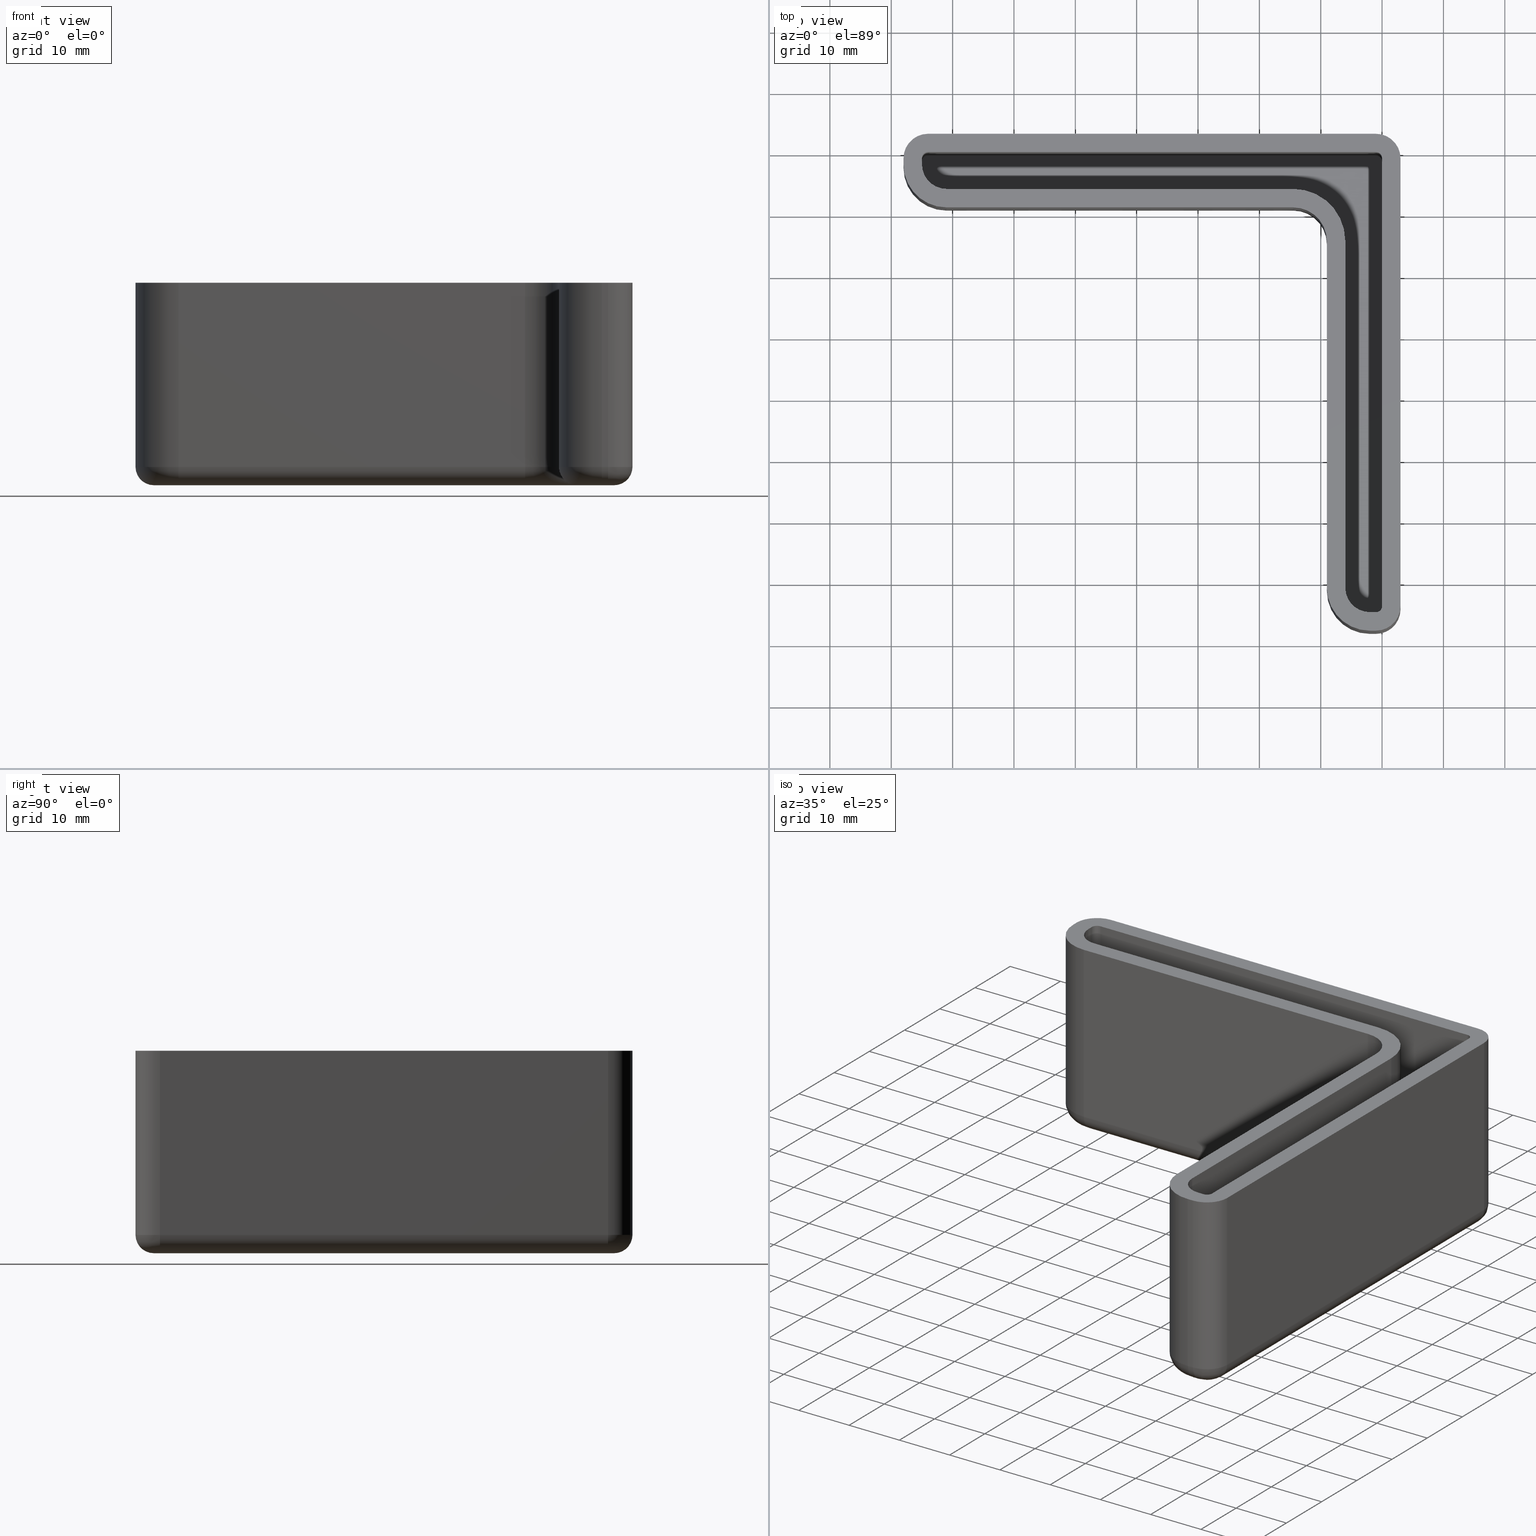
[diagram: canonical four-view strip — front | top / right | iso, engineering-drawing reading convention]
A machine part, canonical four-view strip (front | top / right | iso — engineering-drawing reading convention). The complete STEP part file that produces these views, byte-faithful:
ISO-10303-21;
HEADER;
FILE_DESCRIPTION( ( 'STEP AP203' ), '1' );
FILE_NAME( 'C:/Documents and Settings/JP/�f�X�N�g�b�v/�_�E�����[�h�pCAD�f�[�^/���ӎR�`�|/L75E/L75E.step', '2022-07-22T02:24:47', ( ' ' ), ( ' ' ), 'XStep 1.0', ' ', ' ' );
FILE_SCHEMA( ( 'CONFIG_CONTROL_DESIGN' ) );
ENDSEC;
DATA;
#1 = DESIGN_CONTEXT( '', #27, 'design' );
#2 = APPLICATION_PROTOCOL_DEFINITION( 'INTERNATIONAL STANDARD', 'config_control_design', 1994, #27 );
#3 = PRODUCT_CATEGORY_RELATIONSHIP( 'NONE', 'NONE', #28, #29 );
#4 = DATE_AND_TIME( #30, #31 );
#5 = DATE_TIME_ROLE( 'creation_date' );
#6 = DATE_TIME_ROLE( 'classification_date' );
#7 = PERSON_AND_ORGANIZATION_ROLE( 'creator' );
#8 = PERSON_AND_ORGANIZATION_ROLE( 'design_supplier' );
#9 = PERSON_AND_ORGANIZATION_ROLE( 'classification_officer' );
#10 = PERSON_AND_ORGANIZATION_ROLE( 'design_owner' );
#11 = APPROVAL_PERSON_ORGANIZATION( #32, #33, #34 );
#12 = APPROVAL_DATE_TIME( #4, #33 );
#13 = CC_DESIGN_APPROVAL( #33, ( #35, #36, #37 ) );
#14 = CC_DESIGN_DATE_AND_TIME_ASSIGNMENT( #4, #5, ( #37 ) );
#15 = CC_DESIGN_DATE_AND_TIME_ASSIGNMENT( #4, #6, ( #35 ) );
#16 = CC_DESIGN_PERSON_AND_ORGANIZATION_ASSIGNMENT( #32, #10, ( #38 ) );
#17 = CC_DESIGN_PERSON_AND_ORGANIZATION_ASSIGNMENT( #32, #7, ( #37 ) );
#18 = CC_DESIGN_PERSON_AND_ORGANIZATION_ASSIGNMENT( #32, #7, ( #36 ) );
#19 = CC_DESIGN_PERSON_AND_ORGANIZATION_ASSIGNMENT( #32, #8, ( #36 ) );
#20 = CC_DESIGN_SECURITY_CLASSIFICATION( #35, ( #36 ) );
#21 = CC_DESIGN_PERSON_AND_ORGANIZATION_ASSIGNMENT( #32, #9, ( #35 ) );
#22 = SHAPE_DEFINITION_REPRESENTATION( #39, #40 );
#23 =  ( GEOMETRIC_REPRESENTATION_CONTEXT( 3 )GLOBAL_UNCERTAINTY_ASSIGNED_CONTEXT( ( #43 ) )GLOBAL_UNIT_ASSIGNED_CONTEXT( ( #45, #46, #47 ) )REPRESENTATION_CONTEXT( 'NONE', 'WORKSPACE' ) );
#27 = APPLICATION_CONTEXT( 'CONFIGURATION CONTROLLED 3D DESIGNS OF MECHANICAL PARTS AND ASSEMBLIES' );
#28 = PRODUCT_CATEGORY( 'part', 'NONE' );
#29 = PRODUCT_RELATED_PRODUCT_CATEGORY( 'detail', ' ', ( #38 ) );
#30 = CALENDAR_DATE( 2022, 22, 6 );
#31 = LOCAL_TIME( 11, 24, 47.0000000000000, #49 );
#32 = PERSON_AND_ORGANIZATION( #50, #51 );
#33 = APPROVAL( #52, 'SOLID MODEL' );
#34 = APPROVAL_ROLE( 'APPROVED' );
#35 = SECURITY_CLASSIFICATION( '', '', #53 );
#36 = PRODUCT_DEFINITION_FORMATION_WITH_SPECIFIED_SOURCE( ' ', 'NONE', #38, .NOT_KNOWN. );
#37 = PRODUCT_DEFINITION( 'NONE', 'NONE', #36, #1 );
#38 = PRODUCT( '1', '1', 'PART-1-DESC', ( #54 ) );
#39 = PRODUCT_DEFINITION_SHAPE( 'NONE', 'NONE', #37 );
#40 = ADVANCED_BREP_SHAPE_REPRESENTATION( '1', ( #55, #56 ), #23 );
#43 = UNCERTAINTY_MEASURE_WITH_UNIT( LENGTH_MEASURE( 0.00100000000000000 ), #45, '', '' );
#45 =  ( CONVERSION_BASED_UNIT( 'MILLIMETRE', #59 )LENGTH_UNIT(  )NAMED_UNIT( #62 ) );
#46 =  ( NAMED_UNIT( #64 )PLANE_ANGLE_UNIT(  )SI_UNIT( $, .RADIAN. ) );
#47 =  ( NAMED_UNIT( #64 )SOLID_ANGLE_UNIT(  )SI_UNIT( $, .STERADIAN. ) );
#49 = COORDINATED_UNIVERSAL_TIME_OFFSET( 9, 0, .AHEAD. );
#50 = PERSON( '', 'UNSPECIFIED', $, $, $, $ );
#51 = ORGANIZATION( 'UNSPECIFIED', 'UNSPECIFIED', 'UNSPECIFIED' );
#52 = APPROVAL_STATUS( 'approved' );
#53 = SECURITY_CLASSIFICATION_LEVEL( 'unclassified' );
#54 = MECHANICAL_CONTEXT( '', #27, 'mechanical' );
#55 = MANIFOLD_SOLID_BREP( '1', #70 );
#56 = AXIS2_PLACEMENT_3D( '', #71, #72, #73 );
#59 = LENGTH_MEASURE_WITH_UNIT( LENGTH_MEASURE( 1.00000000000000 ), #74 );
#62 = DIMENSIONAL_EXPONENTS( 1.00000000000000, 0.000000000000000, 0.000000000000000, 0.000000000000000, 0.000000000000000, 0.000000000000000, 0.000000000000000 );
#64 = DIMENSIONAL_EXPONENTS( 0.000000000000000, 0.000000000000000, 0.000000000000000, 0.000000000000000, 0.000000000000000, 0.000000000000000, 0.000000000000000 );
#70 = CLOSED_SHELL( '', ( #75, #76, #77, #78, #79, #80, #81, #82, #83, #84, #85, #86, #87, #88, #89, #90, #91, #92, #93, #94, #95, #96, #97, #98, #99, #100, #101, #102, #103, #104, #105, #106, #107, #108, #109, #110, #111, #112, #113 ) );
#71 = CARTESIAN_POINT( '', ( 0.000000000000000, 0.000000000000000, 0.000000000000000 ) );
#72 = DIRECTION( '', ( 0.000000000000000, 0.000000000000000, 1.00000000000000 ) );
#73 = DIRECTION( '', ( 1.00000000000000, 0.000000000000000, 0.000000000000000 ) );
#74 =  ( NAMED_UNIT( #62 )LENGTH_UNIT(  )SI_UNIT( .MILLI., .METRE. ) );
#75 = ADVANCED_FACE( '', ( #115 ), #116, .T. );
#76 = ADVANCED_FACE( '', ( #117 ), #118, .T. );
#77 = ADVANCED_FACE( '', ( #119 ), #120, .F. );
#78 = ADVANCED_FACE( '', ( #121 ), #122, .T. );
#79 = ADVANCED_FACE( '', ( #123 ), #124, .T. );
#80 = ADVANCED_FACE( '', ( #125 ), #126, .T. );
#81 = ADVANCED_FACE( '', ( #127 ), #128, .F. );
#82 = ADVANCED_FACE( '', ( #129 ), #130, .T. );
#83 = ADVANCED_FACE( '', ( #131 ), #132, .T. );
#84 = ADVANCED_FACE( '', ( #133 ), #134, .T. );
#85 = ADVANCED_FACE( '', ( #135 ), #136, .F. );
#86 = ADVANCED_FACE( '', ( #137 ), #138, .T. );
#87 = ADVANCED_FACE( '', ( #139 ), #140, .T. );
#88 = ADVANCED_FACE( '', ( #141 ), #142, .T. );
#89 = ADVANCED_FACE( '', ( #143, #144 ), #145, .T. );
#90 = ADVANCED_FACE( '', ( #146 ), #147, .T. );
#91 = ADVANCED_FACE( '', ( #148 ), #149, .F. );
#92 = ADVANCED_FACE( '', ( #150 ), #151, .F. );
#93 = ADVANCED_FACE( '', ( #152 ), #153, .F. );
#94 = ADVANCED_FACE( '', ( #154 ), #155, .T. );
#95 = ADVANCED_FACE( '', ( #156 ), #157, .T. );
#96 = ADVANCED_FACE( '', ( #158 ), #159, .F. );
#97 = ADVANCED_FACE( '', ( #160 ), #161, .F. );
#98 = ADVANCED_FACE( '', ( #162 ), #163, .F. );
#99 = ADVANCED_FACE( '', ( #164 ), #165, .F. );
#100 = ADVANCED_FACE( '', ( #166 ), #167, .F. );
#101 = ADVANCED_FACE( '', ( #168 ), #169, .F. );
#102 = ADVANCED_FACE( '', ( #170 ), #171, .F. );
#103 = ADVANCED_FACE( '', ( #172 ), #173, .F. );
#104 = ADVANCED_FACE( '', ( #174 ), #175, .T. );
#105 = ADVANCED_FACE( '', ( #176 ), #177, .T. );
#106 = ADVANCED_FACE( '', ( #178 ), #179, .T. );
#107 = ADVANCED_FACE( '', ( #180 ), #181, .F. );
#108 = ADVANCED_FACE( '', ( #182 ), #183, .T. );
#109 = ADVANCED_FACE( '', ( #184 ), #185, .F. );
#110 = ADVANCED_FACE( '', ( #186 ), #187, .T. );
#111 = ADVANCED_FACE( '', ( #188 ), #189, .T. );
#112 = ADVANCED_FACE( '', ( #190 ), #191, .T. );
#113 = ADVANCED_FACE( '', ( #192 ), #193, .T. );
#115 = FACE_OUTER_BOUND( '', #194, .T. );
#116 = TOROIDAL_SURFACE( '', #195, 4.00000000000000, 3.00000000000000 );
#117 = FACE_OUTER_BOUND( '', #196, .T. );
#118 = CYLINDRICAL_SURFACE( '', #197, 4.00000000000000 );
#119 = FACE_OUTER_BOUND( '', #198, .T. );
#120 = ( B_SPLINE_SURFACE( 2, 2, ( ( #200, #201, #202 ), ( #203, #204, #205 ), ( #206, #207, #208 ) ), .UNSPECIFIED., .F., .F., .F. )B_SPLINE_SURFACE_WITH_KNOTS( ( 3, 3 ), ( 3, 3 ), ( -1.57079632679490, 0.000000000000000 ), ( -1.57079632679490, 1.38777878078145E-016 ), .UNSPECIFIED. )RATIONAL_B_SPLINE_SURFACE( ( ( 1.00000000000000, 0.707106781186547, 1.00000000000000 ), ( 0.707106781186545, 0.499999999999998, 0.707106781186545 ), ( 1.00000000000000, 0.707106781186547, 1.00000000000000 ) ) )BOUNDED_SURFACE(  )REPRESENTATION_ITEM( '' )GEOMETRIC_REPRESENTATION_ITEM(  )SURFACE(  ) );
#121 = FACE_OUTER_BOUND( '', #215, .T. );
#122 = PLANE( '', #216 );
#123 = FACE_OUTER_BOUND( '', #217, .T. );
#124 = CYLINDRICAL_SURFACE( '', #218, 3.00000000000000 );
#125 = FACE_OUTER_BOUND( '', #219, .T. );
#126 = CYLINDRICAL_SURFACE( '', #220, 4.00000000000000 );
#127 = FACE_OUTER_BOUND( '', #221, .T. );
#128 = CYLINDRICAL_SURFACE( '', #222, 5.50000000000000 );
#129 = FACE_OUTER_BOUND( '', #223, .T. );
#130 = PLANE( '', #224 );
#131 = FACE_OUTER_BOUND( '', #225, .T. );
#132 = CYLINDRICAL_SURFACE( '', #226, 3.00000000000000 );
#133 = FACE_OUTER_BOUND( '', #227, .T. );
#134 = TOROIDAL_SURFACE( '', #228, 8.50000000000000, 3.00000000000000 );
#135 = FACE_OUTER_BOUND( '', #229, .T. );
#136 = PLANE( '', #230 );
#137 = FACE_OUTER_BOUND( '', #231, .T. );
#138 = CYLINDRICAL_SURFACE( '', #232, 3.00000000000000 );
#139 = FACE_OUTER_BOUND( '', #233, .T. );
#140 = TOROIDAL_SURFACE( '', #234, 4.00000000000000, 3.00000000000000 );
#141 = FACE_OUTER_BOUND( '', #235, .T. );
#142 = PLANE( '', #236 );
#143 = FACE_OUTER_BOUND( '', #237, .T. );
#144 = FACE_BOUND( '', #238, .T. );
#145 = PLANE( '', #239 );
#146 = FACE_OUTER_BOUND( '', #240, .T. );
#147 = CYLINDRICAL_SURFACE( '', #241, 7.00000000000000 );
#148 = FACE_OUTER_BOUND( '', #242, .T. );
#149 = PLANE( '', #243 );
#150 = FACE_OUTER_BOUND( '', #244, .T. );
#151 = PLANE( '', #245 );
#152 = FACE_OUTER_BOUND( '', #246, .T. );
#153 = CYLINDRICAL_SURFACE( '', #247, 4.00000000000000 );
#154 = FACE_OUTER_BOUND( '', #248, .T. );
#155 = PLANE( '', #249 );
#156 = FACE_OUTER_BOUND( '', #250, .T. );
#157 = CYLINDRICAL_SURFACE( '', #251, 8.50000000000000 );
#158 = FACE_OUTER_BOUND( '', #252, .T. );
#159 = PLANE( '', #253 );
#160 = FACE_OUTER_BOUND( '', #254, .T. );
#161 = CYLINDRICAL_SURFACE( '', #255, 4.00000000000000 );
#162 = FACE_OUTER_BOUND( '', #256, .T. );
#163 = PLANE( '', #257 );
#164 = FACE_OUTER_BOUND( '', #258, .T. );
#165 = CYLINDRICAL_SURFACE( '', #259, 1.00000000000000 );
#166 = FACE_OUTER_BOUND( '', #260, .T. );
#167 = PLANE( '', #261 );
#168 = FACE_OUTER_BOUND( '', #262, .T. );
#169 = CYLINDRICAL_SURFACE( '', #263, 1.00000000000000 );
#170 = FACE_OUTER_BOUND( '', #264, .T. );
#171 = PLANE( '', #265 );
#172 = FACE_OUTER_BOUND( '', #266, .T. );
#173 = CYLINDRICAL_SURFACE( '', #267, 1.00000000000000 );
#174 = FACE_OUTER_BOUND( '', #268, .T. );
#175 = CYLINDRICAL_SURFACE( '', #269, 4.00000000000000 );
#176 = FACE_OUTER_BOUND( '', #270, .T. );
#177 = PLANE( '', #271 );
#178 = FACE_OUTER_BOUND( '', #272, .T. );
#179 = CYLINDRICAL_SURFACE( '', #273, 3.00000000000000 );
#180 = FACE_OUTER_BOUND( '', #274, .T. );
#181 = ( B_SPLINE_SURFACE( 2, 2, ( ( #276, #277, #278 ), ( #279, #280, #281 ), ( #282, #283, #284 ) ), .UNSPECIFIED., .F., .F., .F. )B_SPLINE_SURFACE_WITH_KNOTS( ( 3, 3 ), ( 3, 3 ), ( -1.57079632679490, 0.000000000000000 ), ( 1.57079632679490, 3.14159265358979 ), .UNSPECIFIED. )RATIONAL_B_SPLINE_SURFACE( ( ( 1.00000000000000, 0.707106781186547, 1.00000000000000 ), ( 0.707106781186547, 0.500000000000000, 0.707106781186547 ), ( 1.00000000000000, 0.707106781186547, 1.00000000000000 ) ) )BOUNDED_SURFACE(  )REPRESENTATION_ITEM( '' )GEOMETRIC_REPRESENTATION_ITEM(  )SURFACE(  ) );
#182 = FACE_OUTER_BOUND( '', #291, .T. );
#183 = CYLINDRICAL_SURFACE( '', #292, 3.00000000000000 );
#184 = FACE_OUTER_BOUND( '', #293, .T. );
#185 = ( B_SPLINE_SURFACE( 2, 2, ( ( #295, #296, #297 ), ( #298, #299, #300 ), ( #301, #302, #303 ) ), .UNSPECIFIED., .F., .F., .F. )B_SPLINE_SURFACE_WITH_KNOTS( ( 3, 3 ), ( 3, 3 ), ( -1.57079632679490, 0.000000000000000 ), ( -3.14159265358979, -1.57079632679490 ), .UNSPECIFIED. )RATIONAL_B_SPLINE_SURFACE( ( ( 1.00000000000000, 0.707106781186548, 1.00000000000000 ), ( 0.707106781186548, 0.500000000000000, 0.707106781186548 ), ( 1.00000000000000, 0.707106781186548, 1.00000000000000 ) ) )BOUNDED_SURFACE(  )REPRESENTATION_ITEM( '' )GEOMETRIC_REPRESENTATION_ITEM(  )SURFACE(  ) );
#186 = FACE_OUTER_BOUND( '', #310, .T. );
#187 = CYLINDRICAL_SURFACE( '', #311, 3.00000000000000 );
#188 = FACE_OUTER_BOUND( '', #312, .T. );
#189 = PLANE( '', #313 );
#190 = FACE_OUTER_BOUND( '', #314, .T. );
#191 = PLANE( '', #315 );
#192 = FACE_OUTER_BOUND( '', #316, .T. );
#193 = CYLINDRICAL_SURFACE( '', #317, 7.00000000000000 );
#194 = EDGE_LOOP( '', ( #318, #319, #320, #321 ) );
#195 = AXIS2_PLACEMENT_3D( '', #322, #323, #324 );
#196 = EDGE_LOOP( '', ( #325, #326, #327, #328 ) );
#197 = AXIS2_PLACEMENT_3D( '', #329, #330, #331 );
#198 = EDGE_LOOP( '', ( #332, #333, #334, #335 ) );
#200 = CARTESIAN_POINT( '', ( -74.0000000000000, 3.46944695195361E-015, -33.0000000000000 ) );
#201 = CARTESIAN_POINT( '', ( -75.0000000000000, -3.06658683336675E-015, -33.0000000000000 ) );
#202 = CARTESIAN_POINT( '', ( -75.0000000000000, -0.999999999999990, -33.0000000000000 ) );
#203 = CARTESIAN_POINT( '', ( -74.0000000000000, 2.99999999999999, -33.0000000000000 ) );
#204 = CARTESIAN_POINT( '', ( -78.0000000000000, 3.00000000000000, -33.0000000000000 ) );
#205 = CARTESIAN_POINT( '', ( -78.0000000000000, -0.999999999999999, -33.0000000000000 ) );
#206 = CARTESIAN_POINT( '', ( -74.0000000000000, 2.99999999999999, -30.0000000000000 ) );
#207 = CARTESIAN_POINT( '', ( -78.0000000000000, 2.99999999999999, -30.0000000000000 ) );
#208 = CARTESIAN_POINT( '', ( -78.0000000000000, -0.999999999999997, -30.0000000000000 ) );
#215 = EDGE_LOOP( '', ( #336, #337, #338, #339 ) );
#216 = AXIS2_PLACEMENT_3D( '', #340, #341, #342 );
#217 = EDGE_LOOP( '', ( #343, #344, #345, #346 ) );
#218 = AXIS2_PLACEMENT_3D( '', #347, #348, #349 );
#219 = EDGE_LOOP( '', ( #350, #351, #352, #353 ) );
#220 = AXIS2_PLACEMENT_3D( '', #354, #355, #356 );
#221 = EDGE_LOOP( '', ( #357, #358, #359, #360 ) );
#222 = AXIS2_PLACEMENT_3D( '', #361, #362, #363 );
#223 = EDGE_LOOP( '', ( #364, #365, #366, #367 ) );
#224 = AXIS2_PLACEMENT_3D( '', #368, #369, #370 );
#225 = EDGE_LOOP( '', ( #371, #372, #373, #374 ) );
#226 = AXIS2_PLACEMENT_3D( '', #375, #376, #377 );
#227 = EDGE_LOOP( '', ( #378, #379, #380, #381 ) );
#228 = AXIS2_PLACEMENT_3D( '', #382, #383, #384 );
#229 = EDGE_LOOP( '', ( #385, #386, #387, #388, #389, #390, #391, #392, #393, #394, #395, #396 ) );
#230 = AXIS2_PLACEMENT_3D( '', #397, #398, #399 );
#231 = EDGE_LOOP( '', ( #400, #401, #402, #403 ) );
#232 = AXIS2_PLACEMENT_3D( '', #404, #405, #406 );
#233 = EDGE_LOOP( '', ( #407, #408, #409, #410 ) );
#234 = AXIS2_PLACEMENT_3D( '', #411, #412, #413 );
#235 = EDGE_LOOP( '', ( #414, #415, #416, #417 ) );
#236 = AXIS2_PLACEMENT_3D( '', #418, #419, #420 );
#237 = EDGE_LOOP( '', ( #421, #422, #423, #424, #425, #426, #427, #428, #429, #430, #431, #432 ) );
#238 = EDGE_LOOP( '', ( #433, #434, #435, #436, #437, #438, #439, #440, #441, #442, #443, #444 ) );
#239 = AXIS2_PLACEMENT_3D( '', #445, #446, #447 );
#240 = EDGE_LOOP( '', ( #448, #449, #450, #451 ) );
#241 = AXIS2_PLACEMENT_3D( '', #452, #453, #454 );
#242 = EDGE_LOOP( '', ( #455, #456, #457, #458 ) );
#243 = AXIS2_PLACEMENT_3D( '', #459, #460, #461 );
#244 = EDGE_LOOP( '', ( #462, #463, #464, #465 ) );
#245 = AXIS2_PLACEMENT_3D( '', #466, #467, #468 );
#246 = EDGE_LOOP( '', ( #469, #470, #471, #472 ) );
#247 = AXIS2_PLACEMENT_3D( '', #473, #474, #475 );
#248 = EDGE_LOOP( '', ( #476, #477, #478, #479, #480, #481, #482, #483, #484, #485, #486, #487 ) );
#249 = AXIS2_PLACEMENT_3D( '', #488, #489, #490 );
#250 = EDGE_LOOP( '', ( #491, #492, #493, #494 ) );
#251 = AXIS2_PLACEMENT_3D( '', #495, #496, #497 );
#252 = EDGE_LOOP( '', ( #498, #499, #500, #501 ) );
#253 = AXIS2_PLACEMENT_3D( '', #502, #503, #504 );
#254 = EDGE_LOOP( '', ( #505, #506, #507, #508 ) );
#255 = AXIS2_PLACEMENT_3D( '', #509, #510, #511 );
#256 = EDGE_LOOP( '', ( #512, #513, #514, #515 ) );
#257 = AXIS2_PLACEMENT_3D( '', #516, #517, #518 );
#258 = EDGE_LOOP( '', ( #519, #520, #521, #522 ) );
#259 = AXIS2_PLACEMENT_3D( '', #523, #524, #525 );
#260 = EDGE_LOOP( '', ( #526, #527, #528, #529 ) );
#261 = AXIS2_PLACEMENT_3D( '', #530, #531, #532 );
#262 = EDGE_LOOP( '', ( #533, #534, #535, #536 ) );
#263 = AXIS2_PLACEMENT_3D( '', #537, #538, #539 );
#264 = EDGE_LOOP( '', ( #540, #541, #542, #543 ) );
#265 = AXIS2_PLACEMENT_3D( '', #544, #545, #546 );
#266 = EDGE_LOOP( '', ( #547, #548, #549, #550 ) );
#267 = AXIS2_PLACEMENT_3D( '', #551, #552, #553 );
#268 = EDGE_LOOP( '', ( #554, #555, #556, #557 ) );
#269 = AXIS2_PLACEMENT_3D( '', #558, #559, #560 );
#270 = EDGE_LOOP( '', ( #561, #562, #563, #564 ) );
#271 = AXIS2_PLACEMENT_3D( '', #565, #566, #567 );
#272 = EDGE_LOOP( '', ( #568, #569, #570, #571 ) );
#273 = AXIS2_PLACEMENT_3D( '', #572, #573, #574 );
#274 = EDGE_LOOP( '', ( #575, #576, #577, #578 ) );
#276 = CARTESIAN_POINT( '', ( -0.999999999999990, -75.0000000000000, -33.0000000000000 ) );
#277 = CARTESIAN_POINT( '', ( -3.06658683336675E-015, -75.0000000000000, -33.0000000000000 ) );
#278 = CARTESIAN_POINT( '', ( 3.46944695195361E-015, -74.0000000000000, -33.0000000000000 ) );
#279 = CARTESIAN_POINT( '', ( -1.00000000000001, -78.0000000000000, -33.0000000000000 ) );
#280 = CARTESIAN_POINT( '', ( 3.00000000000001, -78.0000000000000, -33.0000000000000 ) );
#281 = CARTESIAN_POINT( '', ( 3.00000000000001, -74.0000000000000, -33.0000000000000 ) );
#282 = CARTESIAN_POINT( '', ( -0.999999999999990, -78.0000000000000, -30.0000000000000 ) );
#283 = CARTESIAN_POINT( '', ( 3.00000000000000, -78.0000000000000, -30.0000000000000 ) );
#284 = CARTESIAN_POINT( '', ( 3.00000000000001, -74.0000000000000, -30.0000000000000 ) );
#291 = EDGE_LOOP( '', ( #579, #580, #581, #582 ) );
#292 = AXIS2_PLACEMENT_3D( '', #583, #584, #585 );
#293 = EDGE_LOOP( '', ( #586, #587, #588, #589 ) );
#295 = CARTESIAN_POINT( '', ( 2.60208521396521E-015, -0.999999999999998, -33.0000000000000 ) );
#296 = CARTESIAN_POINT( '', ( 2.45326946669340E-015, 1.83995210002005E-015, -33.0000000000000 ) );
#297 = CARTESIAN_POINT( '', ( -0.999999999999997, 1.73472347597681E-015, -33.0000000000000 ) );
#298 = CARTESIAN_POINT( '', ( 3.00000000000000, -0.999999999999998, -33.0000000000000 ) );
#299 = CARTESIAN_POINT( '', ( 3.00000000000000, 3.00000000000000, -33.0000000000000 ) );
#300 = CARTESIAN_POINT( '', ( -0.999999999999998, 3.00000000000000, -33.0000000000000 ) );
#301 = CARTESIAN_POINT( '', ( 3.00000000000000, -0.999999999999998, -30.0000000000000 ) );
#302 = CARTESIAN_POINT( '', ( 3.00000000000000, 3.00000000000000, -30.0000000000000 ) );
#303 = CARTESIAN_POINT( '', ( -0.999999999999997, 3.00000000000000, -30.0000000000000 ) );
#310 = EDGE_LOOP( '', ( #590, #591, #592, #593 ) );
#311 = AXIS2_PLACEMENT_3D( '', #594, #595, #596 );
#312 = EDGE_LOOP( '', ( #597, #598, #599, #600 ) );
#313 = AXIS2_PLACEMENT_3D( '', #601, #602, #603 );
#314 = EDGE_LOOP( '', ( #604, #605, #606, #607 ) );
#315 = AXIS2_PLACEMENT_3D( '', #608, #609, #610 );
#316 = EDGE_LOOP( '', ( #611, #612, #613, #614 ) );
#317 = AXIS2_PLACEMENT_3D( '', #615, #616, #617 );
#318 = ORIENTED_EDGE( '', *, *, #618, .T. );
#319 = ORIENTED_EDGE( '', *, *, #619, .T. );
#320 = ORIENTED_EDGE( '', *, *, #620, .T. );
#321 = ORIENTED_EDGE( '', *, *, #621, .T. );
#322 = CARTESIAN_POINT( '', ( -71.0000000000000, -2.00000000000000, -30.0000000000000 ) );
#323 = DIRECTION( '', ( 3.58678896750442E-017, -8.65927457071936E-017, 1.00000000000000 ) );
#324 = DIRECTION( '', ( -1.00000000000000, 1.06733799631484E-048, 3.58678896750442E-017 ) );
#325 = ORIENTED_EDGE( '', *, *, #622, .F. );
#326 = ORIENTED_EDGE( '', *, *, #623, .T. );
#327 = ORIENTED_EDGE( '', *, *, #624, .T. );
#328 = ORIENTED_EDGE( '', *, *, #625, .T. );
#329 = CARTESIAN_POINT( '', ( -0.999999999999998, -0.999999999999998, -30.0000000000000 ) );
#330 = DIRECTION( '', ( -3.58678896750442E-017, 8.65927457071936E-017, -1.00000000000000 ) );
#331 = DIRECTION( '', ( 0.707106781186547, 0.707106781186548, 3.58678896750443E-017 ) );
#332 = ORIENTED_EDGE( '', *, *, #626, .T. );
#333 = ORIENTED_EDGE( '', *, *, #627, .T. );
#334 = ORIENTED_EDGE( '', *, *, #628, .F. );
#335 = ORIENTED_EDGE( '', *, *, #629, .T. );
#336 = ORIENTED_EDGE( '', *, *, #630, .F. );
#337 = ORIENTED_EDGE( '', *, *, #631, .F. );
#338 = ORIENTED_EDGE( '', *, *, #632, .F. );
#339 = ORIENTED_EDGE( '', *, *, #623, .F. );
#340 = CARTESIAN_POINT( '', ( 2.16840434497101E-015, 3.00000000000000, -30.0000000000000 ) );
#341 = DIRECTION( '', ( 3.58732406867153E-049, 1.00000000000000, 8.65927457071936E-017 ) );
#342 = DIRECTION( '', ( -3.58678896750442E-017, 8.65927457071936E-017, -1.00000000000000 ) );
#343 = ORIENTED_EDGE( '', *, *, #628, .T. );
#344 = ORIENTED_EDGE( '', *, *, #630, .T. );
#345 = ORIENTED_EDGE( '', *, *, #633, .F. );
#346 = ORIENTED_EDGE( '', *, *, #634, .T. );
#347 = CARTESIAN_POINT( '', ( -18.7500000000000, 2.60208521396521E-015, -30.0000000000000 ) );
#348 = DIRECTION( '', ( 1.00000000000000, 2.73910036535073E-033, -3.58678896750442E-017 ) );
#349 = DIRECTION( '', ( -2.53624280160747E-017, 0.707106781186548, -0.707106781186547 ) );
#350 = ORIENTED_EDGE( '', *, *, #627, .F. );
#351 = ORIENTED_EDGE( '', *, *, #635, .T. );
#352 = ORIENTED_EDGE( '', *, *, #636, .T. );
#353 = ORIENTED_EDGE( '', *, *, #631, .T. );
#354 = CARTESIAN_POINT( '', ( -74.0000000000000, -0.999999999999997, -30.0000000000000 ) );
#355 = DIRECTION( '', ( -3.58678896750442E-017, 8.65927457071936E-017, -1.00000000000000 ) );
#356 = DIRECTION( '', ( -0.707106781186546, 0.707106781186549, 8.65927457071936E-017 ) );
#357 = ORIENTED_EDGE( '', *, *, #637, .F. );
#358 = ORIENTED_EDGE( '', *, *, #638, .T. );
#359 = ORIENTED_EDGE( '', *, *, #639, .T. );
#360 = ORIENTED_EDGE( '', *, *, #640, .T. );
#361 = CARTESIAN_POINT( '', ( -14.5000000000000, -14.5000000000000, -30.0000000000000 ) );
#362 = DIRECTION( '', ( -3.58678896750442E-017, 8.65927457071936E-017, -1.00000000000000 ) );
#363 = DIRECTION( '', ( 0.707106781186548, 0.707106781186548, 3.58678896750442E-017 ) );
#364 = ORIENTED_EDGE( '', *, *, #641, .F. );
#365 = ORIENTED_EDGE( '', *, *, #640, .F. );
#366 = ORIENTED_EDGE( '', *, *, #642, .F. );
#367 = ORIENTED_EDGE( '', *, *, #643, .F. );
#368 = CARTESIAN_POINT( '', ( -75.0000000000000, -8.99999999999999, -30.0000000000000 ) );
#369 = DIRECTION( '', ( -1.43492962746861E-048, -1.00000000000000, -8.65927457071936E-017 ) );
#370 = DIRECTION( '', ( -1.00000000000000, -8.67907354531593E-033, 1.00228644725778E-016 ) );
#371 = ORIENTED_EDGE( '', *, *, #644, .T. );
#372 = ORIENTED_EDGE( '', *, *, #641, .T. );
#373 = ORIENTED_EDGE( '', *, *, #620, .F. );
#374 = ORIENTED_EDGE( '', *, *, #645, .T. );
#375 = CARTESIAN_POINT( '', ( -56.2500000000000, -5.99999999999999, -30.0000000000000 ) );
#376 = DIRECTION( '', ( -1.00000000000000, 5.47820073070147E-033, 6.80482672004110E-017 ) );
#377 = DIRECTION( '', ( -4.81173911854047E-017, -0.707106781186548, -0.707106781186547 ) );
#378 = ORIENTED_EDGE( '', *, *, #646, .T. );
#379 = ORIENTED_EDGE( '', *, *, #637, .T. );
#380 = ORIENTED_EDGE( '', *, *, #644, .F. );
#381 = ORIENTED_EDGE( '', *, *, #647, .T. );
#382 = CARTESIAN_POINT( '', ( -14.5000000000000, -14.5000000000000, -30.0000000000000 ) );
#383 = DIRECTION( '', ( -3.58678896750442E-017, 8.65927457071936E-017, -1.00000000000000 ) );
#384 = DIRECTION( '', ( 1.00000000000000, -1.06733799631484E-048, -3.58678896750442E-017 ) );
#385 = ORIENTED_EDGE( '', *, *, #619, .F. );
#386 = ORIENTED_EDGE( '', *, *, #648, .F. );
#387 = ORIENTED_EDGE( '', *, *, #629, .F. );
#388 = ORIENTED_EDGE( '', *, *, #634, .F. );
#389 = ORIENTED_EDGE( '', *, *, #649, .F. );
#390 = ORIENTED_EDGE( '', *, *, #650, .F. );
#391 = ORIENTED_EDGE( '', *, *, #651, .F. );
#392 = ORIENTED_EDGE( '', *, *, #652, .F. );
#393 = ORIENTED_EDGE( '', *, *, #653, .F. );
#394 = ORIENTED_EDGE( '', *, *, #654, .F. );
#395 = ORIENTED_EDGE( '', *, *, #647, .F. );
#396 = ORIENTED_EDGE( '', *, *, #645, .F. );
#397 = CARTESIAN_POINT( '', ( -37.5000000000000, -37.5000000000000, -33.0000000000000 ) );
#398 = DIRECTION( '', ( 3.58678896750442E-017, -8.65927457071936E-017, 1.00000000000000 ) );
#399 = DIRECTION( '', ( -1.00000000000000, 1.06733799631484E-048, 3.58678896750442E-017 ) );
#400 = ORIENTED_EDGE( '', *, *, #655, .T. );
#401 = ORIENTED_EDGE( '', *, *, #656, .T. );
#402 = ORIENTED_EDGE( '', *, *, #646, .F. );
#403 = ORIENTED_EDGE( '', *, *, #654, .T. );
#404 = CARTESIAN_POINT( '', ( -6.00000000000000, -21.7500000000000, -30.0000000000000 ) );
#405 = DIRECTION( '', ( 0.000000000000000, -1.00000000000000, -8.65927457071936E-017 ) );
#406 = DIRECTION( '', ( -0.707106781186547, 6.12303176911189E-017, -0.707106781186547 ) );
#407 = ORIENTED_EDGE( '', *, *, #657, .T. );
#408 = ORIENTED_EDGE( '', *, *, #658, .T. );
#409 = ORIENTED_EDGE( '', *, *, #655, .F. );
#410 = ORIENTED_EDGE( '', *, *, #653, .T. );
#411 = CARTESIAN_POINT( '', ( -2.00000000000000, -71.0000000000000, -30.0000000000000 ) );
#412 = DIRECTION( '', ( 3.58678896750442E-017, -8.65927457071936E-017, 1.00000000000000 ) );
#413 = DIRECTION( '', ( -1.00000000000000, 1.06733799631484E-048, 3.58678896750442E-017 ) );
#414 = ORIENTED_EDGE( '', *, *, #656, .F. );
#415 = ORIENTED_EDGE( '', *, *, #659, .F. );
#416 = ORIENTED_EDGE( '', *, *, #660, .F. );
#417 = ORIENTED_EDGE( '', *, *, #638, .F. );
#418 = CARTESIAN_POINT( '', ( -9.00000000000000, -6.00000000000000, -30.0000000000000 ) );
#419 = DIRECTION( '', ( -1.00000000000000, -3.58732406867153E-049, 3.58678896750442E-017 ) );
#420 = DIRECTION( '', ( -3.10589904968477E-033, -1.00000000000000, -8.65927457071936E-017 ) );
#421 = ORIENTED_EDGE( '', *, *, #636, .F. );
#422 = ORIENTED_EDGE( '', *, *, #661, .T. );
#423 = ORIENTED_EDGE( '', *, *, #662, .F. );
#424 = ORIENTED_EDGE( '', *, *, #642, .T. );
#425 = ORIENTED_EDGE( '', *, *, #639, .F. );
#426 = ORIENTED_EDGE( '', *, *, #660, .T. );
#427 = ORIENTED_EDGE( '', *, *, #663, .F. );
#428 = ORIENTED_EDGE( '', *, *, #664, .T. );
#429 = ORIENTED_EDGE( '', *, *, #665, .F. );
#430 = ORIENTED_EDGE( '', *, *, #666, .T. );
#431 = ORIENTED_EDGE( '', *, *, #624, .F. );
#432 = ORIENTED_EDGE( '', *, *, #632, .T. );
#433 = ORIENTED_EDGE( '', *, *, #667, .F. );
#434 = ORIENTED_EDGE( '', *, *, #668, .T. );
#435 = ORIENTED_EDGE( '', *, *, #669, .F. );
#436 = ORIENTED_EDGE( '', *, *, #670, .T. );
#437 = ORIENTED_EDGE( '', *, *, #671, .F. );
#438 = ORIENTED_EDGE( '', *, *, #672, .T. );
#439 = ORIENTED_EDGE( '', *, *, #673, .F. );
#440 = ORIENTED_EDGE( '', *, *, #674, .T. );
#441 = ORIENTED_EDGE( '', *, *, #675, .F. );
#442 = ORIENTED_EDGE( '', *, *, #676, .T. );
#443 = ORIENTED_EDGE( '', *, *, #677, .F. );
#444 = ORIENTED_EDGE( '', *, *, #678, .T. );
#445 = CARTESIAN_POINT( '', ( -37.5000000000000, -37.5000000000000, -3.02500897608590E-015 ) );
#446 = DIRECTION( '', ( 3.58678896750442E-017, -8.65927457071936E-017, 1.00000000000000 ) );
#447 = DIRECTION( '', ( -1.00000000000000, 1.06733799631484E-048, 3.58678896750442E-017 ) );
#448 = ORIENTED_EDGE( '', *, *, #621, .F. );
#449 = ORIENTED_EDGE( '', *, *, #643, .T. );
#450 = ORIENTED_EDGE( '', *, *, #662, .T. );
#451 = ORIENTED_EDGE( '', *, *, #679, .T. );
#452 = CARTESIAN_POINT( '', ( -71.0000000000000, -2.00000000000000, -30.0000000000000 ) );
#453 = DIRECTION( '', ( -3.58678896750442E-017, 8.65927457071936E-017, -1.00000000000000 ) );
#454 = DIRECTION( '', ( -0.707106781186548, -0.707106781186547, -3.58678896750441E-017 ) );
#455 = ORIENTED_EDGE( '', *, *, #680, .F. );
#456 = ORIENTED_EDGE( '', *, *, #681, .T. );
#457 = ORIENTED_EDGE( '', *, *, #682, .F. );
#458 = ORIENTED_EDGE( '', *, *, #678, .F. );
#459 = CARTESIAN_POINT( '', ( -6.00000000000000, -6.00000000000000, -30.0000000000000 ) );
#460 = DIRECTION( '', ( -1.00000000000000, -3.58732406867153E-049, 3.58678896750442E-017 ) );
#461 = DIRECTION( '', ( -3.10589904968477E-033, -1.00000000000000, -8.65927457071936E-017 ) );
#462 = ORIENTED_EDGE( '', *, *, #683, .F. );
#463 = ORIENTED_EDGE( '', *, *, #684, .T. );
#464 = ORIENTED_EDGE( '', *, *, #685, .F. );
#465 = ORIENTED_EDGE( '', *, *, #676, .F. );
#466 = CARTESIAN_POINT( '', ( -5.99999999999999, -75.0000000000000, -30.0000000000000 ) );
#467 = DIRECTION( '', ( -3.58732406867153E-049, -1.00000000000000, -8.65927457071936E-017 ) );
#468 = DIRECTION( '', ( -1.00000000000000, -3.10589904968477E-033, 3.58678896750442E-017 ) );
#469 = ORIENTED_EDGE( '', *, *, #686, .F. );
#470 = ORIENTED_EDGE( '', *, *, #680, .T. );
#471 = ORIENTED_EDGE( '', *, *, #677, .T. );
#472 = ORIENTED_EDGE( '', *, *, #685, .T. );
#473 = CARTESIAN_POINT( '', ( -2.00000000000000, -71.0000000000000, -30.0000000000000 ) );
#474 = DIRECTION( '', ( -3.58678896750442E-017, 8.65927457071936E-017, -1.00000000000000 ) );
#475 = DIRECTION( '', ( -0.707106781186547, -0.707106781186548, -3.58678896750443E-017 ) );
#476 = ORIENTED_EDGE( '', *, *, #687, .T. );
#477 = ORIENTED_EDGE( '', *, *, #688, .T. );
#478 = ORIENTED_EDGE( '', *, *, #689, .T. );
#479 = ORIENTED_EDGE( '', *, *, #690, .T. );
#480 = ORIENTED_EDGE( '', *, *, #691, .F. );
#481 = ORIENTED_EDGE( '', *, *, #681, .F. );
#482 = ORIENTED_EDGE( '', *, *, #686, .T. );
#483 = ORIENTED_EDGE( '', *, *, #684, .F. );
#484 = ORIENTED_EDGE( '', *, *, #692, .T. );
#485 = ORIENTED_EDGE( '', *, *, #693, .F. );
#486 = ORIENTED_EDGE( '', *, *, #694, .T. );
#487 = ORIENTED_EDGE( '', *, *, #695, .T. );
#488 = CARTESIAN_POINT( '', ( -37.5000000000000, -37.5000000000000, -30.0000000000000 ) );
#489 = DIRECTION( '', ( 3.58678896750442E-017, -8.65927457071936E-017, 1.00000000000000 ) );
#490 = DIRECTION( '', ( -1.00000000000000, 1.06733799631484E-048, 3.58678896750442E-017 ) );
#491 = ORIENTED_EDGE( '', *, *, #667, .T. );
#492 = ORIENTED_EDGE( '', *, *, #682, .T. );
#493 = ORIENTED_EDGE( '', *, *, #691, .T. );
#494 = ORIENTED_EDGE( '', *, *, #696, .T. );
#495 = CARTESIAN_POINT( '', ( -14.5000000000000, -14.5000000000000, -30.0000000000000 ) );
#496 = DIRECTION( '', ( -3.58678896750442E-017, 8.65927457071936E-017, -1.00000000000000 ) );
#497 = DIRECTION( '', ( 0.707106781186547, 0.707106781186548, 3.58678896750443E-017 ) );
#498 = ORIENTED_EDGE( '', *, *, #697, .F. );
#499 = ORIENTED_EDGE( '', *, *, #668, .F. );
#500 = ORIENTED_EDGE( '', *, *, #696, .F. );
#501 = ORIENTED_EDGE( '', *, *, #690, .F. );
#502 = CARTESIAN_POINT( '', ( -75.0000000000000, -5.99999999999999, -30.0000000000000 ) );
#503 = DIRECTION( '', ( -1.43492962746861E-048, -1.00000000000000, -8.65927457071936E-017 ) );
#504 = DIRECTION( '', ( -1.00000000000000, -8.67907354531593E-033, 1.00228644725778E-016 ) );
#505 = ORIENTED_EDGE( '', *, *, #689, .F. );
#506 = ORIENTED_EDGE( '', *, *, #698, .T. );
#507 = ORIENTED_EDGE( '', *, *, #669, .T. );
#508 = ORIENTED_EDGE( '', *, *, #697, .T. );
#509 = CARTESIAN_POINT( '', ( -71.0000000000000, -2.00000000000000, -30.0000000000000 ) );
#510 = DIRECTION( '', ( -3.58678896750442E-017, 8.65927457071936E-017, -1.00000000000000 ) );
#511 = DIRECTION( '', ( -0.707106781186548, -0.707106781186547, -3.58678896750441E-017 ) );
#512 = ORIENTED_EDGE( '', *, *, #699, .F. );
#513 = ORIENTED_EDGE( '', *, *, #670, .F. );
#514 = ORIENTED_EDGE( '', *, *, #698, .F. );
#515 = ORIENTED_EDGE( '', *, *, #688, .F. );
#516 = CARTESIAN_POINT( '', ( -75.0000000000000, 3.46944695195361E-015, -30.0000000000000 ) );
#517 = DIRECTION( '', ( -1.00000000000000, -3.58732406867153E-049, 3.58678896750442E-017 ) );
#518 = DIRECTION( '', ( -3.10589904968477E-033, -1.00000000000000, -8.65927457071936E-017 ) );
#519 = ORIENTED_EDGE( '', *, *, #687, .F. );
#520 = ORIENTED_EDGE( '', *, *, #700, .T. );
#521 = ORIENTED_EDGE( '', *, *, #671, .T. );
#522 = ORIENTED_EDGE( '', *, *, #699, .T. );
#523 = CARTESIAN_POINT( '', ( -74.0000000000000, -0.999999999999997, -30.0000000000000 ) );
#524 = DIRECTION( '', ( -3.58678896750442E-017, 8.65927457071936E-017, -1.00000000000000 ) );
#525 = DIRECTION( '', ( -0.707106781186546, 0.707106781186549, 8.65927457071936E-017 ) );
#526 = ORIENTED_EDGE( '', *, *, #700, .F. );
#527 = ORIENTED_EDGE( '', *, *, #695, .F. );
#528 = ORIENTED_EDGE( '', *, *, #701, .F. );
#529 = ORIENTED_EDGE( '', *, *, #672, .F. );
#530 = CARTESIAN_POINT( '', ( 2.60208521396521E-015, 2.16840434497101E-015, -30.0000000000000 ) );
#531 = DIRECTION( '', ( 3.58732406867153E-049, 1.00000000000000, 8.65927457071936E-017 ) );
#532 = DIRECTION( '', ( -3.58678896750442E-017, 8.65927457071936E-017, -1.00000000000000 ) );
#533 = ORIENTED_EDGE( '', *, *, #694, .F. );
#534 = ORIENTED_EDGE( '', *, *, #702, .T. );
#535 = ORIENTED_EDGE( '', *, *, #673, .T. );
#536 = ORIENTED_EDGE( '', *, *, #701, .T. );
#537 = CARTESIAN_POINT( '', ( -0.999999999999997, -0.999999999999994, -30.0000000000000 ) );
#538 = DIRECTION( '', ( -3.58678896750442E-017, 8.65927457071936E-017, -1.00000000000000 ) );
#539 = DIRECTION( '', ( 0.707106781186549, 0.707106781186546, 3.58678896750440E-017 ) );
#540 = ORIENTED_EDGE( '', *, *, #702, .F. );
#541 = ORIENTED_EDGE( '', *, *, #693, .T. );
#542 = ORIENTED_EDGE( '', *, *, #703, .F. );
#543 = ORIENTED_EDGE( '', *, *, #674, .F. );
#544 = CARTESIAN_POINT( '', ( 3.46944695195361E-015, -75.0000000000000, -30.0000000000000 ) );
#545 = DIRECTION( '', ( 1.00000000000000, 3.58732406867153E-049, -3.58678896750442E-017 ) );
#546 = DIRECTION( '', ( 3.58678896750442E-017, -8.65927457071936E-017, 1.00000000000000 ) );
#547 = ORIENTED_EDGE( '', *, *, #692, .F. );
#548 = ORIENTED_EDGE( '', *, *, #683, .T. );
#549 = ORIENTED_EDGE( '', *, *, #675, .T. );
#550 = ORIENTED_EDGE( '', *, *, #703, .T. );
#551 = CARTESIAN_POINT( '', ( -0.999999999999997, -74.0000000000000, -30.0000000000000 ) );
#552 = DIRECTION( '', ( -3.58678896750442E-017, 8.65927457071936E-017, -1.00000000000000 ) );
#553 = DIRECTION( '', ( 0.707106781186549, -0.707106781186546, -8.65927457071935E-017 ) );
#554 = ORIENTED_EDGE( '', *, *, #704, .F. );
#555 = ORIENTED_EDGE( '', *, *, #705, .T. );
#556 = ORIENTED_EDGE( '', *, *, #665, .T. );
#557 = ORIENTED_EDGE( '', *, *, #706, .T. );
#558 = CARTESIAN_POINT( '', ( -0.999999999999997, -74.0000000000000, -30.0000000000000 ) );
#559 = DIRECTION( '', ( -3.58678896750442E-017, 8.65927457071936E-017, -1.00000000000000 ) );
#560 = DIRECTION( '', ( 0.707106781186549, -0.707106781186546, -8.65927457071935E-017 ) );
#561 = ORIENTED_EDGE( '', *, *, #707, .F. );
#562 = ORIENTED_EDGE( '', *, *, #679, .F. );
#563 = ORIENTED_EDGE( '', *, *, #661, .F. );
#564 = ORIENTED_EDGE( '', *, *, #635, .F. );
#565 = CARTESIAN_POINT( '', ( -78.0000000000000, 3.46944695195361E-015, -30.0000000000000 ) );
#566 = DIRECTION( '', ( -1.00000000000000, -3.58732406867153E-049, 3.58678896750442E-017 ) );
#567 = DIRECTION( '', ( -3.10589904968477E-033, -1.00000000000000, -8.65927457071936E-017 ) );
#568 = ORIENTED_EDGE( '', *, *, #708, .T. );
#569 = ORIENTED_EDGE( '', *, *, #709, .T. );
#570 = ORIENTED_EDGE( '', *, *, #657, .F. );
#571 = ORIENTED_EDGE( '', *, *, #652, .T. );
#572 = CARTESIAN_POINT( '', ( -21.7500000000000, -75.0000000000000, -30.0000000000000 ) );
#573 = DIRECTION( '', ( 1.00000000000000, 5.47820073070147E-033, -3.58678896750442E-017 ) );
#574 = DIRECTION( '', ( -2.53624280160747E-017, -0.707106781186548, -0.707106781186547 ) );
#575 = ORIENTED_EDGE( '', *, *, #710, .T. );
#576 = ORIENTED_EDGE( '', *, *, #704, .T. );
#577 = ORIENTED_EDGE( '', *, *, #708, .F. );
#578 = ORIENTED_EDGE( '', *, *, #651, .T. );
#579 = ORIENTED_EDGE( '', *, *, #711, .T. );
#580 = ORIENTED_EDGE( '', *, *, #712, .T. );
#581 = ORIENTED_EDGE( '', *, *, #710, .F. );
#582 = ORIENTED_EDGE( '', *, *, #650, .T. );
#583 = CARTESIAN_POINT( '', ( 6.93889390390723E-015, -56.2500000000000, -30.0000000000000 ) );
#584 = DIRECTION( '', ( -1.09564014614029E-032, 1.00000000000000, 8.65927457071936E-017 ) );
#585 = DIRECTION( '', ( 0.707106781186547, 6.12303176911189E-017, -0.707106781186547 ) );
#586 = ORIENTED_EDGE( '', *, *, #633, .T. );
#587 = ORIENTED_EDGE( '', *, *, #622, .T. );
#588 = ORIENTED_EDGE( '', *, *, #711, .F. );
#589 = ORIENTED_EDGE( '', *, *, #649, .T. );
#590 = ORIENTED_EDGE( '', *, *, #618, .F. );
#591 = ORIENTED_EDGE( '', *, *, #707, .T. );
#592 = ORIENTED_EDGE( '', *, *, #626, .F. );
#593 = ORIENTED_EDGE( '', *, *, #648, .T. );
#594 = CARTESIAN_POINT( '', ( -75.0000000000000, -18.7500000000000, -30.0000000000000 ) );
#595 = DIRECTION( '', ( 0.000000000000000, 1.00000000000000, 8.65927457071935E-017 ) );
#596 = DIRECTION( '', ( -0.707106781186548, 6.12303176911188E-017, -0.707106781186547 ) );
#597 = ORIENTED_EDGE( '', *, *, #712, .F. );
#598 = ORIENTED_EDGE( '', *, *, #625, .F. );
#599 = ORIENTED_EDGE( '', *, *, #666, .F. );
#600 = ORIENTED_EDGE( '', *, *, #705, .F. );
#601 = CARTESIAN_POINT( '', ( 3.00000000000000, -75.0000000000000, -30.0000000000000 ) );
#602 = DIRECTION( '', ( 1.00000000000000, 3.58732406867153E-049, -3.58678896750442E-017 ) );
#603 = DIRECTION( '', ( 3.58678896750442E-017, -8.65927457071936E-017, 1.00000000000000 ) );
#604 = ORIENTED_EDGE( '', *, *, #709, .F. );
#605 = ORIENTED_EDGE( '', *, *, #706, .F. );
#606 = ORIENTED_EDGE( '', *, *, #664, .F. );
#607 = ORIENTED_EDGE( '', *, *, #713, .F. );
#608 = CARTESIAN_POINT( '', ( -5.99999999999999, -78.0000000000000, -30.0000000000000 ) );
#609 = DIRECTION( '', ( -3.58732406867153E-049, -1.00000000000000, -8.65927457071936E-017 ) );
#610 = DIRECTION( '', ( -1.00000000000000, -3.10589904968477E-033, 3.58678896750442E-017 ) );
#611 = ORIENTED_EDGE( '', *, *, #658, .F. );
#612 = ORIENTED_EDGE( '', *, *, #713, .T. );
#613 = ORIENTED_EDGE( '', *, *, #663, .T. );
#614 = ORIENTED_EDGE( '', *, *, #659, .T. );
#615 = CARTESIAN_POINT( '', ( -2.00000000000000, -71.0000000000000, -30.0000000000000 ) );
#616 = DIRECTION( '', ( -3.58678896750442E-017, 8.65927457071936E-017, -1.00000000000000 ) );
#617 = DIRECTION( '', ( -0.707106781186547, -0.707106781186548, -3.58678896750443E-017 ) );
#618 = EDGE_CURVE( '', #714, #715, #716, .T. );
#619 = EDGE_CURVE( '', #715, #717, #718, .T. );
#620 = EDGE_CURVE( '', #717, #719, #720, .T. );
#621 = EDGE_CURVE( '', #719, #714, #721, .T. );
#622 = EDGE_CURVE( '', #722, #723, #724, .T. );
#623 = EDGE_CURVE( '', #722, #725, #726, .T. );
#624 = EDGE_CURVE( '', #725, #727, #728, .T. );
#625 = EDGE_CURVE( '', #727, #723, #729, .T. );
#626 = EDGE_CURVE( '', #730, #731, #732, .T. );
#627 = EDGE_CURVE( '', #731, #733, #734, .T. );
#628 = EDGE_CURVE( '', #735, #733, #736, .T. );
#629 = EDGE_CURVE( '', #735, #730, #737, .T. );
#630 = EDGE_CURVE( '', #733, #722, #738, .T. );
#631 = EDGE_CURVE( '', #739, #733, #740, .T. );
#632 = EDGE_CURVE( '', #725, #739, #741, .T. );
#633 = EDGE_CURVE( '', #742, #722, #743, .T. );
#634 = EDGE_CURVE( '', #742, #735, #744, .T. );
#635 = EDGE_CURVE( '', #731, #745, #746, .T. );
#636 = EDGE_CURVE( '', #745, #739, #747, .T. );
#637 = EDGE_CURVE( '', #748, #749, #750, .T. );
#638 = EDGE_CURVE( '', #748, #751, #752, .T. );
#639 = EDGE_CURVE( '', #751, #753, #754, .T. );
#640 = EDGE_CURVE( '', #753, #749, #755, .T. );
#641 = EDGE_CURVE( '', #749, #719, #756, .T. );
#642 = EDGE_CURVE( '', #757, #753, #758, .T. );
#643 = EDGE_CURVE( '', #719, #757, #759, .T. );
#644 = EDGE_CURVE( '', #760, #749, #761, .T. );
#645 = EDGE_CURVE( '', #717, #760, #762, .T. );
#646 = EDGE_CURVE( '', #763, #748, #764, .T. );
#647 = EDGE_CURVE( '', #760, #763, #765, .T. );
#648 = EDGE_CURVE( '', #730, #715, #766, .T. );
#649 = EDGE_CURVE( '', #767, #742, #768, .T. );
#650 = EDGE_CURVE( '', #769, #767, #770, .T. );
#651 = EDGE_CURVE( '', #771, #769, #772, .T. );
#652 = EDGE_CURVE( '', #773, #771, #774, .T. );
#653 = EDGE_CURVE( '', #775, #773, #776, .T. );
#654 = EDGE_CURVE( '', #763, #775, #777, .T. );
#655 = EDGE_CURVE( '', #775, #778, #779, .T. );
#656 = EDGE_CURVE( '', #778, #748, #780, .T. );
#657 = EDGE_CURVE( '', #773, #781, #782, .T. );
#658 = EDGE_CURVE( '', #781, #778, #783, .T. );
#659 = EDGE_CURVE( '', #784, #778, #785, .T. );
#660 = EDGE_CURVE( '', #751, #784, #786, .T. );
#661 = EDGE_CURVE( '', #745, #787, #788, .T. );
#662 = EDGE_CURVE( '', #757, #787, #789, .T. );
#663 = EDGE_CURVE( '', #790, #784, #791, .T. );
#664 = EDGE_CURVE( '', #790, #792, #793, .T. );
#665 = EDGE_CURVE( '', #794, #792, #795, .T. );
#666 = EDGE_CURVE( '', #794, #727, #796, .T. );
#667 = EDGE_CURVE( '', #797, #798, #799, .T. );
#668 = EDGE_CURVE( '', #797, #800, #801, .T. );
#669 = EDGE_CURVE( '', #802, #800, #803, .T. );
#670 = EDGE_CURVE( '', #802, #804, #805, .T. );
#671 = EDGE_CURVE( '', #806, #804, #807, .T. );
#672 = EDGE_CURVE( '', #806, #808, #809, .T. );
#673 = EDGE_CURVE( '', #810, #808, #811, .T. );
#674 = EDGE_CURVE( '', #810, #812, #813, .T. );
#675 = EDGE_CURVE( '', #814, #812, #815, .T. );
#676 = EDGE_CURVE( '', #814, #816, #817, .T. );
#677 = EDGE_CURVE( '', #818, #816, #819, .T. );
#678 = EDGE_CURVE( '', #818, #798, #820, .T. );
#679 = EDGE_CURVE( '', #787, #714, #821, .T. );
#680 = EDGE_CURVE( '', #822, #818, #823, .T. );
#681 = EDGE_CURVE( '', #822, #824, #825, .T. );
#682 = EDGE_CURVE( '', #798, #824, #826, .T. );
#683 = EDGE_CURVE( '', #827, #814, #828, .T. );
#684 = EDGE_CURVE( '', #827, #829, #830, .T. );
#685 = EDGE_CURVE( '', #816, #829, #831, .T. );
#686 = EDGE_CURVE( '', #822, #829, #832, .T. );
#687 = EDGE_CURVE( '', #833, #834, #835, .T. );
#688 = EDGE_CURVE( '', #834, #836, #837, .T. );
#689 = EDGE_CURVE( '', #836, #838, #839, .T. );
#690 = EDGE_CURVE( '', #838, #840, #841, .T. );
#691 = EDGE_CURVE( '', #824, #840, #842, .T. );
#692 = EDGE_CURVE( '', #827, #843, #844, .T. );
#693 = EDGE_CURVE( '', #845, #843, #846, .T. );
#694 = EDGE_CURVE( '', #845, #847, #848, .T. );
#695 = EDGE_CURVE( '', #847, #833, #849, .T. );
#696 = EDGE_CURVE( '', #840, #797, #850, .T. );
#697 = EDGE_CURVE( '', #800, #838, #851, .T. );
#698 = EDGE_CURVE( '', #836, #802, #852, .T. );
#699 = EDGE_CURVE( '', #804, #834, #853, .T. );
#700 = EDGE_CURVE( '', #833, #806, #854, .T. );
#701 = EDGE_CURVE( '', #808, #847, #855, .T. );
#702 = EDGE_CURVE( '', #845, #810, #856, .T. );
#703 = EDGE_CURVE( '', #812, #843, #857, .T. );
#704 = EDGE_CURVE( '', #858, #859, #860, .T. );
#705 = EDGE_CURVE( '', #858, #794, #861, .T. );
#706 = EDGE_CURVE( '', #792, #859, #862, .T. );
#707 = EDGE_CURVE( '', #714, #731, #863, .T. );
#708 = EDGE_CURVE( '', #771, #859, #864, .T. );
#709 = EDGE_CURVE( '', #859, #781, #865, .T. );
#710 = EDGE_CURVE( '', #769, #858, #866, .T. );
#711 = EDGE_CURVE( '', #767, #723, #867, .T. );
#712 = EDGE_CURVE( '', #723, #858, #868, .T. );
#713 = EDGE_CURVE( '', #781, #790, #869, .T. );
#714 = VERTEX_POINT( '', #870 );
#715 = VERTEX_POINT( '', #871 );
#716 = CIRCLE( '', #872, 3.00000000000000 );
#717 = VERTEX_POINT( '', #873 );
#718 = CIRCLE( '', #874, 4.00000000000000 );
#719 = VERTEX_POINT( '', #875 );
#720 = CIRCLE( '', #876, 3.00000000000000 );
#721 = CIRCLE( '', #877, 7.00000000000000 );
#722 = VERTEX_POINT( '', #878 );
#723 = VERTEX_POINT( '', #879 );
#724 = CIRCLE( '', #880, 4.00000000000000 );
#725 = VERTEX_POINT( '', #881 );
#726 = LINE( '', #882, #883 );
#727 = VERTEX_POINT( '', #884 );
#728 = CIRCLE( '', #885, 4.00000000000000 );
#729 = LINE( '', #886, #887 );
#730 = VERTEX_POINT( '', #888 );
#731 = VERTEX_POINT( '', #889 );
#732 = CIRCLE( '', #890, 3.00000000000000 );
#733 = VERTEX_POINT( '', #891 );
#734 = CIRCLE( '', #892, 4.00000000000000 );
#735 = VERTEX_POINT( '', #893 );
#736 = CIRCLE( '', #894, 3.00000000000000 );
#737 = CIRCLE( '', #895, 1.00000000000000 );
#738 = LINE( '', #896, #897 );
#739 = VERTEX_POINT( '', #898 );
#740 = LINE( '', #899, #900 );
#741 = LINE( '', #901, #902 );
#742 = VERTEX_POINT( '', #903 );
#743 = CIRCLE( '', #904, 3.00000000000000 );
#744 = LINE( '', #905, #906 );
#745 = VERTEX_POINT( '', #907 );
#746 = LINE( '', #908, #909 );
#747 = CIRCLE( '', #910, 4.00000000000000 );
#748 = VERTEX_POINT( '', #911 );
#749 = VERTEX_POINT( '', #912 );
#750 = CIRCLE( '', #913, 5.50000000000000 );
#751 = VERTEX_POINT( '', #914 );
#752 = LINE( '', #915, #916 );
#753 = VERTEX_POINT( '', #917 );
#754 = CIRCLE( '', #918, 5.50000000000000 );
#755 = LINE( '', #919, #920 );
#756 = LINE( '', #921, #922 );
#757 = VERTEX_POINT( '', #923 );
#758 = LINE( '', #924, #925 );
#759 = LINE( '', #926, #927 );
#760 = VERTEX_POINT( '', #928 );
#761 = CIRCLE( '', #929, 3.00000000000000 );
#762 = LINE( '', #930, #931 );
#763 = VERTEX_POINT( '', #932 );
#764 = CIRCLE( '', #933, 3.00000000000000 );
#765 = CIRCLE( '', #934, 8.50000000000000 );
#766 = LINE( '', #935, #936 );
#767 = VERTEX_POINT( '', #937 );
#768 = CIRCLE( '', #938, 1.00000000000000 );
#769 = VERTEX_POINT( '', #939 );
#770 = LINE( '', #940, #941 );
#771 = VERTEX_POINT( '', #942 );
#772 = CIRCLE( '', #943, 1.00000000000000 );
#773 = VERTEX_POINT( '', #944 );
#774 = LINE( '', #945, #946 );
#775 = VERTEX_POINT( '', #947 );
#776 = CIRCLE( '', #948, 4.00000000000000 );
#777 = LINE( '', #949, #950 );
#778 = VERTEX_POINT( '', #951 );
#779 = CIRCLE( '', #952, 3.00000000000000 );
#780 = LINE( '', #953, #954 );
#781 = VERTEX_POINT( '', #955 );
#782 = CIRCLE( '', #956, 3.00000000000000 );
#783 = CIRCLE( '', #957, 7.00000000000000 );
#784 = VERTEX_POINT( '', #958 );
#785 = LINE( '', #959, #960 );
#786 = LINE( '', #961, #962 );
#787 = VERTEX_POINT( '', #963 );
#788 = LINE( '', #964, #965 );
#789 = CIRCLE( '', #966, 7.00000000000000 );
#790 = VERTEX_POINT( '', #967 );
#791 = CIRCLE( '', #968, 7.00000000000000 );
#792 = VERTEX_POINT( '', #969 );
#793 = LINE( '', #970, #971 );
#794 = VERTEX_POINT( '', #972 );
#795 = CIRCLE( '', #973, 4.00000000000000 );
#796 = LINE( '', #974, #975 );
#797 = VERTEX_POINT( '', #976 );
#798 = VERTEX_POINT( '', #977 );
#799 = CIRCLE( '', #978, 8.50000000000000 );
#800 = VERTEX_POINT( '', #979 );
#801 = LINE( '', #980, #981 );
#802 = VERTEX_POINT( '', #982 );
#803 = CIRCLE( '', #983, 4.00000000000000 );
#804 = VERTEX_POINT( '', #984 );
#805 = LINE( '', #985, #986 );
#806 = VERTEX_POINT( '', #987 );
#807 = CIRCLE( '', #988, 1.00000000000000 );
#808 = VERTEX_POINT( '', #989 );
#809 = LINE( '', #990, #991 );
#810 = VERTEX_POINT( '', #992 );
#811 = CIRCLE( '', #993, 1.00000000000000 );
#812 = VERTEX_POINT( '', #994 );
#813 = LINE( '', #995, #996 );
#814 = VERTEX_POINT( '', #997 );
#815 = CIRCLE( '', #998, 1.00000000000000 );
#816 = VERTEX_POINT( '', #999 );
#817 = LINE( '', #1000, #1001 );
#818 = VERTEX_POINT( '', #1002 );
#819 = CIRCLE( '', #1003, 4.00000000000000 );
#820 = LINE( '', #1004, #1005 );
#821 = LINE( '', #1006, #1007 );
#822 = VERTEX_POINT( '', #1008 );
#823 = LINE( '', #1009, #1010 );
#824 = VERTEX_POINT( '', #1011 );
#825 = LINE( '', #1012, #1013 );
#826 = LINE( '', #1014, #1015 );
#827 = VERTEX_POINT( '', #1016 );
#828 = LINE( '', #1017, #1018 );
#829 = VERTEX_POINT( '', #1019 );
#830 = LINE( '', #1020, #1021 );
#831 = LINE( '', #1022, #1023 );
#832 = CIRCLE( '', #1024, 4.00000000000000 );
#833 = VERTEX_POINT( '', #1025 );
#834 = VERTEX_POINT( '', #1026 );
#835 = CIRCLE( '', #1027, 1.00000000000000 );
#836 = VERTEX_POINT( '', #1028 );
#837 = LINE( '', #1029, #1030 );
#838 = VERTEX_POINT( '', #1031 );
#839 = CIRCLE( '', #1032, 4.00000000000000 );
#840 = VERTEX_POINT( '', #1033 );
#841 = LINE( '', #1034, #1035 );
#842 = CIRCLE( '', #1036, 8.50000000000000 );
#843 = VERTEX_POINT( '', #1037 );
#844 = CIRCLE( '', #1038, 1.00000000000000 );
#845 = VERTEX_POINT( '', #1039 );
#846 = LINE( '', #1040, #1041 );
#847 = VERTEX_POINT( '', #1042 );
#848 = CIRCLE( '', #1043, 1.00000000000000 );
#849 = LINE( '', #1044, #1045 );
#850 = LINE( '', #1046, #1047 );
#851 = LINE( '', #1048, #1049 );
#852 = LINE( '', #1050, #1051 );
#853 = LINE( '', #1052, #1053 );
#854 = LINE( '', #1054, #1055 );
#855 = LINE( '', #1056, #1057 );
#856 = LINE( '', #1058, #1059 );
#857 = LINE( '', #1060, #1061 );
#858 = VERTEX_POINT( '', #1062 );
#859 = VERTEX_POINT( '', #1063 );
#860 = CIRCLE( '', #1064, 4.00000000000000 );
#861 = LINE( '', #1065, #1066 );
#862 = LINE( '', #1067, #1068 );
#863 = LINE( '', #1069, #1070 );
#864 = CIRCLE( '', #1071, 3.00000000000000 );
#865 = LINE( '', #1072, #1073 );
#866 = CIRCLE( '', #1074, 3.00000000000000 );
#867 = CIRCLE( '', #1075, 3.00000000000000 );
#868 = LINE( '', #1076, #1077 );
#869 = LINE( '', #1078, #1079 );
#870 = CARTESIAN_POINT( '', ( -78.0000000000000, -2.00000000000001, -30.0000000000000 ) );
#871 = CARTESIAN_POINT( '', ( -75.0000000000000, -2.00000000000000, -33.0000000000000 ) );
#872 = AXIS2_PLACEMENT_3D( '', #1080, #1081, #1082 );
#873 = CARTESIAN_POINT( '', ( -71.0000000000000, -5.99999999999999, -33.0000000000000 ) );
#874 = AXIS2_PLACEMENT_3D( '', #1083, #1084, #1085 );
#875 = CARTESIAN_POINT( '', ( -71.0000000000000, -8.99999999999999, -30.0000000000000 ) );
#876 = AXIS2_PLACEMENT_3D( '', #1086, #1087, #1088 );
#877 = AXIS2_PLACEMENT_3D( '', #1089, #1090, #1091 );
#878 = CARTESIAN_POINT( '', ( -0.999999999999997, 3.00000000000000, -30.0000000000000 ) );
#879 = CARTESIAN_POINT( '', ( 3.00000000000000, -0.999999999999998, -30.0000000000000 ) );
#880 = AXIS2_PLACEMENT_3D( '', #1092, #1093, #1094 );
#881 = CARTESIAN_POINT( '', ( -0.999999999999997, 3.00000000000000, 1.73185491414387E-016 ) );
#882 = CARTESIAN_POINT( '', ( -0.999999999999997, 3.00000000000000, -30.0000000000000 ) );
#883 = VECTOR( '', #1095, 1000.00000000000 );
#884 = CARTESIAN_POINT( '', ( 3.00000000000000, -1.00000000000000, 1.73185491414387E-016 ) );
#885 = AXIS2_PLACEMENT_3D( '', #1096, #1097, #1098 );
#886 = CARTESIAN_POINT( '', ( 3.00000000000000, -0.999999999999998, -30.0000000000000 ) );
#887 = VECTOR( '', #1099, 1000.00000000000 );
#888 = CARTESIAN_POINT( '', ( -75.0000000000000, -0.999999999999990, -33.0000000000000 ) );
#889 = CARTESIAN_POINT( '', ( -78.0000000000000, -0.999999999999997, -30.0000000000000 ) );
#890 = AXIS2_PLACEMENT_3D( '', #1100, #1101, #1102 );
#891 = CARTESIAN_POINT( '', ( -74.0000000000000, 3.00000000000001, -30.0000000000000 ) );
#892 = AXIS2_PLACEMENT_3D( '', #1103, #1104, #1105 );
#893 = CARTESIAN_POINT( '', ( -74.0000000000000, 3.46944695195361E-015, -33.0000000000000 ) );
#894 = AXIS2_PLACEMENT_3D( '', #1106, #1107, #1108 );
#895 = AXIS2_PLACEMENT_3D( '', #1109, #1110, #1111 );
#896 = CARTESIAN_POINT( '', ( -18.7500000000000, 3.00000000000000, -30.0000000000000 ) );
#897 = VECTOR( '', #1112, 1000.00000000000 );
#898 = CARTESIAN_POINT( '', ( -74.0000000000000, 3.00000000000000, 4.26025591065010E-015 ) );
#899 = CARTESIAN_POINT( '', ( -74.0000000000000, 3.00000000000001, -30.0000000000000 ) );
#900 = VECTOR( '', #1113, 1000.00000000000 );
#901 = CARTESIAN_POINT( '', ( -18.7500000000000, 3.00000000000000, 2.10561120706532E-015 ) );
#902 = VECTOR( '', #1114, 1000.00000000000 );
#903 = CARTESIAN_POINT( '', ( -0.999999999999997, 1.30104260698261E-015, -33.0000000000000 ) );
#904 = AXIS2_PLACEMENT_3D( '', #1115, #1116, #1117 );
#905 = CARTESIAN_POINT( '', ( -18.7500000000000, 2.60208521396521E-015, -33.0000000000000 ) );
#906 = VECTOR( '', #1118, 1000.00000000000 );
#907 = CARTESIAN_POINT( '', ( -78.0000000000000, -0.999999999999997, 3.56751394499255E-015 ) );
#908 = CARTESIAN_POINT( '', ( -78.0000000000000, -0.999999999999997, -30.0000000000000 ) );
#909 = VECTOR( '', #1119, 1000.00000000000 );
#910 = AXIS2_PLACEMENT_3D( '', #1120, #1121, #1122 );
#911 = CARTESIAN_POINT( '', ( -9.00000000000000, -14.5000000000000, -30.0000000000000 ) );
#912 = CARTESIAN_POINT( '', ( -14.5000000000000, -9.00000000000000, -30.0000000000000 ) );
#913 = AXIS2_PLACEMENT_3D( '', #1123, #1124, #1125 );
#914 = CARTESIAN_POINT( '', ( -9.00000000000000, -14.5000000000000, -2.03492952411905E-015 ) );
#915 = CARTESIAN_POINT( '', ( -9.00000000000000, -14.5000000000000, -30.0000000000000 ) );
#916 = VECTOR( '', #1126, 1000.00000000000 );
#917 = CARTESIAN_POINT( '', ( -14.5000000000000, -9.00000000000000, 1.43451742783457E-015 ) );
#918 = AXIS2_PLACEMENT_3D( '', #1127, #1128, #1129 );
#919 = CARTESIAN_POINT( '', ( -14.5000000000000, -9.00000000000000, -30.0000000000000 ) );
#920 = VECTOR( '', #1130, 1000.00000000000 );
#921 = CARTESIAN_POINT( '', ( -56.2500000000000, -8.99999999999999, -30.0000000000000 ) );
#922 = VECTOR( '', #1131, 1000.00000000000 );
#923 = CARTESIAN_POINT( '', ( -71.0000000000000, -9.00000000000000, 3.48092119928536E-015 ) );
#924 = CARTESIAN_POINT( '', ( -56.2500000000000, -9.00000000000000, 1.28871724651285E-015 ) );
#925 = VECTOR( '', #1132, 1000.00000000000 );
#926 = CARTESIAN_POINT( '', ( -71.0000000000000, -8.99999999999999, -30.0000000000000 ) );
#927 = VECTOR( '', #1133, 1000.00000000000 );
#928 = CARTESIAN_POINT( '', ( -14.5000000000000, -5.99999999999999, -33.0000000000000 ) );
#929 = AXIS2_PLACEMENT_3D( '', #1134, #1135, #1136 );
#930 = CARTESIAN_POINT( '', ( -56.2500000000000, -5.99999999999999, -33.0000000000000 ) );
#931 = VECTOR( '', #1137, 1000.00000000000 );
#932 = CARTESIAN_POINT( '', ( -6.00000000000000, -14.5000000000000, -33.0000000000000 ) );
#933 = AXIS2_PLACEMENT_3D( '', #1138, #1139, #1140 );
#934 = AXIS2_PLACEMENT_3D( '', #1141, #1142, #1143 );
#935 = CARTESIAN_POINT( '', ( -75.0000000000000, -18.7500000000000, -33.0000000000000 ) );
#936 = VECTOR( '', #1144, 1000.00000000000 );
#937 = CARTESIAN_POINT( '', ( 2.60208521396521E-015, -0.999999999999994, -33.0000000000000 ) );
#938 = AXIS2_PLACEMENT_3D( '', #1145, #1146, #1147 );
#939 = CARTESIAN_POINT( '', ( 3.46944695195361E-015, -74.0000000000000, -33.0000000000000 ) );
#940 = CARTESIAN_POINT( '', ( 6.93889390390723E-015, -56.2500000000000, -33.0000000000000 ) );
#941 = VECTOR( '', #1148, 1000.00000000000 );
#942 = CARTESIAN_POINT( '', ( -0.999999999999990, -75.0000000000000, -33.0000000000000 ) );
#943 = AXIS2_PLACEMENT_3D( '', #1149, #1150, #1151 );
#944 = CARTESIAN_POINT( '', ( -2.00000000000000, -75.0000000000000, -33.0000000000000 ) );
#945 = CARTESIAN_POINT( '', ( -21.7500000000000, -75.0000000000000, -33.0000000000000 ) );
#946 = VECTOR( '', #1152, 1000.00000000000 );
#947 = CARTESIAN_POINT( '', ( -5.99999999999999, -71.0000000000000, -33.0000000000000 ) );
#948 = AXIS2_PLACEMENT_3D( '', #1153, #1154, #1155 );
#949 = CARTESIAN_POINT( '', ( -6.00000000000000, -21.7500000000000, -33.0000000000000 ) );
#950 = VECTOR( '', #1156, 1000.00000000000 );
#951 = CARTESIAN_POINT( '', ( -8.99999999999999, -71.0000000000000, -30.0000000000000 ) );
#952 = AXIS2_PLACEMENT_3D( '', #1157, #1158, #1159 );
#953 = CARTESIAN_POINT( '', ( -9.00000000000000, -21.7500000000000, -30.0000000000000 ) );
#954 = VECTOR( '', #1160, 1000.00000000000 );
#955 = CARTESIAN_POINT( '', ( -1.99999999999999, -78.0000000000000, -30.0000000000000 ) );
#956 = AXIS2_PLACEMENT_3D( '', #1161, #1162, #1163 );
#957 = AXIS2_PLACEMENT_3D( '', #1164, #1165, #1166 );
#958 = CARTESIAN_POINT( '', ( -9.00000000000000, -71.0000000000000, -6.92741965657548E-015 ) );
#959 = CARTESIAN_POINT( '', ( -8.99999999999999, -71.0000000000000, -30.0000000000000 ) );
#960 = VECTOR( '', #1167, 1000.00000000000 );
#961 = CARTESIAN_POINT( '', ( -9.00000000000000, -21.7500000000000, -2.66272693049620E-015 ) );
#962 = VECTOR( '', #1168, 1000.00000000000 );
#963 = CARTESIAN_POINT( '', ( -78.0000000000000, -2.00000000000001, 3.48092119928536E-015 ) );
#964 = CARTESIAN_POINT( '', ( -78.0000000000000, -18.7500000000000, 2.03049270868987E-015 ) );
#965 = VECTOR( '', #1169, 1000.00000000000 );
#966 = AXIS2_PLACEMENT_3D( '', #1170, #1171, #1172 );
#967 = CARTESIAN_POINT( '', ( -1.99999999999998, -78.0000000000000, -6.92741965657548E-015 ) );
#968 = AXIS2_PLACEMENT_3D( '', #1173, #1174, #1175 );
#969 = CARTESIAN_POINT( '', ( -0.999999999999997, -78.0000000000000, -6.84082691086829E-015 ) );
#970 = CARTESIAN_POINT( '', ( -21.7500000000000, -78.0000000000000, -5.16817943233894E-015 ) );
#971 = VECTOR( '', #1176, 1000.00000000000 );
#972 = CARTESIAN_POINT( '', ( 3.00000000000000, -74.0000000000000, -6.14808494521074E-015 ) );
#973 = AXIS2_PLACEMENT_3D( '', #1177, #1178, #1179 );
#974 = CARTESIAN_POINT( '', ( 3.00000000000000, -56.2500000000000, -4.61106370890806E-015 ) );
#975 = VECTOR( '', #1180, 1000.00000000000 );
#976 = CARTESIAN_POINT( '', ( -14.5000000000000, -5.99999999999999, 1.69429566495615E-015 ) );
#977 = CARTESIAN_POINT( '', ( -6.00000000000000, -14.5000000000000, -1.77515128699747E-015 ) );
#978 = AXIS2_PLACEMENT_3D( '', #1181, #1182, #1183 );
#979 = CARTESIAN_POINT( '', ( -71.0000000000000, -5.99999999999999, 3.74069943640694E-015 ) );
#980 = CARTESIAN_POINT( '', ( -56.2500000000000, -6.00000000000000, 1.54849548363443E-015 ) );
#981 = VECTOR( '', #1184, 1000.00000000000 );
#982 = CARTESIAN_POINT( '', ( -75.0000000000000, -2.00000000000000, 3.74069943640694E-015 ) );
#983 = AXIS2_PLACEMENT_3D( '', #1185, #1186, #1187 );
#984 = CARTESIAN_POINT( '', ( -75.0000000000000, -0.999999999999997, 3.82729218211413E-015 ) );
#985 = CARTESIAN_POINT( '', ( -75.0000000000000, -18.7500000000000, 2.29027094581145E-015 ) );
#986 = VECTOR( '', #1188, 1000.00000000000 );
#987 = CARTESIAN_POINT( '', ( -74.0000000000000, -3.46944695195361E-015, 4.00047767352852E-015 ) );
#988 = AXIS2_PLACEMENT_3D( '', #1189, #1190, #1191 );
#989 = CARTESIAN_POINT( '', ( -0.999999999999997, -4.33680868994202E-016, -8.65927457071932E-017 ) );
#990 = CARTESIAN_POINT( '', ( -18.7500000000000, 0.000000000000000, 1.84583296994374E-015 ) );
#991 = VECTOR( '', #1192, 1000.00000000000 );
#992 = CARTESIAN_POINT( '', ( 3.90312782094782E-015, -0.999999999999997, -8.65927457071928E-017 ) );
#993 = AXIS2_PLACEMENT_3D( '', #1193, #1194, #1195 );
#994 = CARTESIAN_POINT( '', ( -3.46944695195361E-015, -74.0000000000000, -6.40786318233232E-015 ) );
#995 = CARTESIAN_POINT( '', ( 0.000000000000000, -56.2500000000000, -4.87084194602964E-015 ) );
#996 = VECTOR( '', #1196, 1000.00000000000 );
#997 = CARTESIAN_POINT( '', ( -0.999999999999997, -75.0000000000000, -6.58104867374671E-015 ) );
#998 = AXIS2_PLACEMENT_3D( '', #1197, #1198, #1199 );
#999 = CARTESIAN_POINT( '', ( -2.00000000000000, -75.0000000000000, -6.66764141945390E-015 ) );
#1000 = CARTESIAN_POINT( '', ( -21.7500000000000, -75.0000000000000, -4.90840119521736E-015 ) );
#1001 = VECTOR( '', #1200, 1000.00000000000 );
#1002 = CARTESIAN_POINT( '', ( -5.99999999999999, -71.0000000000000, -6.66764141945390E-015 ) );
#1003 = AXIS2_PLACEMENT_3D( '', #1201, #1202, #1203 );
#1004 = CARTESIAN_POINT( '', ( -5.99999999999999, -21.7500000000000, -2.40294869337462E-015 ) );
#1005 = VECTOR( '', #1204, 1000.00000000000 );
#1006 = CARTESIAN_POINT( '', ( -78.0000000000000, -2.00000000000001, -30.0000000000000 ) );
#1007 = VECTOR( '', #1205, 1000.00000000000 );
#1008 = CARTESIAN_POINT( '', ( -5.99999999999999, -71.0000000000000, -30.0000000000000 ) );
#1009 = CARTESIAN_POINT( '', ( -5.99999999999999, -71.0000000000000, -30.0000000000000 ) );
#1010 = VECTOR( '', #1206, 1000.00000000000 );
#1011 = CARTESIAN_POINT( '', ( -6.00000000000000, -14.5000000000000, -30.0000000000000 ) );
#1012 = CARTESIAN_POINT( '', ( -5.99999999999999, -75.0000000000000, -30.0000000000000 ) );
#1013 = VECTOR( '', #1207, 1000.00000000000 );
#1014 = CARTESIAN_POINT( '', ( -6.00000000000000, -14.5000000000000, -30.0000000000000 ) );
#1015 = VECTOR( '', #1208, 1000.00000000000 );
#1016 = CARTESIAN_POINT( '', ( -0.999999999999990, -75.0000000000000, -30.0000000000000 ) );
#1017 = CARTESIAN_POINT( '', ( -0.999999999999990, -75.0000000000000, -30.0000000000000 ) );
#1018 = VECTOR( '', #1209, 1000.00000000000 );
#1019 = CARTESIAN_POINT( '', ( -2.00000000000000, -75.0000000000000, -30.0000000000000 ) );
#1020 = CARTESIAN_POINT( '', ( 3.46944695195361E-015, -75.0000000000000, -30.0000000000000 ) );
#1021 = VECTOR( '', #1210, 1000.00000000000 );
#1022 = CARTESIAN_POINT( '', ( -2.00000000000000, -75.0000000000000, -30.0000000000000 ) );
#1023 = VECTOR( '', #1211, 1000.00000000000 );
#1024 = AXIS2_PLACEMENT_3D( '', #1212, #1213, #1214 );
#1025 = CARTESIAN_POINT( '', ( -74.0000000000000, 3.46944695195361E-015, -30.0000000000000 ) );
#1026 = CARTESIAN_POINT( '', ( -75.0000000000000, -0.999999999999990, -30.0000000000000 ) );
#1027 = AXIS2_PLACEMENT_3D( '', #1215, #1216, #1217 );
#1028 = CARTESIAN_POINT( '', ( -75.0000000000000, -2.00000000000000, -30.0000000000000 ) );
#1029 = CARTESIAN_POINT( '', ( -75.0000000000000, 3.46944695195361E-015, -30.0000000000000 ) );
#1030 = VECTOR( '', #1218, 1000.00000000000 );
#1031 = CARTESIAN_POINT( '', ( -71.0000000000000, -5.99999999999999, -30.0000000000000 ) );
#1032 = AXIS2_PLACEMENT_3D( '', #1219, #1220, #1221 );
#1033 = CARTESIAN_POINT( '', ( -14.5000000000000, -6.00000000000000, -30.0000000000000 ) );
#1034 = CARTESIAN_POINT( '', ( -75.0000000000000, -5.99999999999999, -30.0000000000000 ) );
#1035 = VECTOR( '', #1222, 1000.00000000000 );
#1036 = AXIS2_PLACEMENT_3D( '', #1223, #1224, #1225 );
#1037 = CARTESIAN_POINT( '', ( 3.46944695195361E-015, -74.0000000000000, -30.0000000000000 ) );
#1038 = AXIS2_PLACEMENT_3D( '', #1226, #1227, #1228 );
#1039 = CARTESIAN_POINT( '', ( 2.60208521396521E-015, -0.999999999999994, -30.0000000000000 ) );
#1040 = CARTESIAN_POINT( '', ( 2.60208521396521E-015, 2.16840434497101E-015, -30.0000000000000 ) );
#1041 = VECTOR( '', #1229, 1000.00000000000 );
#1042 = CARTESIAN_POINT( '', ( -0.999999999999997, 2.16840434497101E-015, -30.0000000000000 ) );
#1043 = AXIS2_PLACEMENT_3D( '', #1230, #1231, #1232 );
#1044 = CARTESIAN_POINT( '', ( 2.60208521396521E-015, 2.16840434497101E-015, -30.0000000000000 ) );
#1045 = VECTOR( '', #1233, 1000.00000000000 );
#1046 = CARTESIAN_POINT( '', ( -14.5000000000000, -6.00000000000000, -30.0000000000000 ) );
#1047 = VECTOR( '', #1234, 1000.00000000000 );
#1048 = CARTESIAN_POINT( '', ( -71.0000000000000, -5.99999999999999, -30.0000000000000 ) );
#1049 = VECTOR( '', #1235, 1000.00000000000 );
#1050 = CARTESIAN_POINT( '', ( -75.0000000000000, -2.00000000000000, -30.0000000000000 ) );
#1051 = VECTOR( '', #1236, 1000.00000000000 );
#1052 = CARTESIAN_POINT( '', ( -75.0000000000000, -0.999999999999990, -30.0000000000000 ) );
#1053 = VECTOR( '', #1237, 1000.00000000000 );
#1054 = CARTESIAN_POINT( '', ( -74.0000000000000, 3.46944695195361E-015, -30.0000000000000 ) );
#1055 = VECTOR( '', #1238, 1000.00000000000 );
#1056 = CARTESIAN_POINT( '', ( -0.999999999999997, 2.16840434497101E-015, -30.0000000000000 ) );
#1057 = VECTOR( '', #1239, 1000.00000000000 );
#1058 = CARTESIAN_POINT( '', ( 2.60208521396521E-015, -0.999999999999994, -30.0000000000000 ) );
#1059 = VECTOR( '', #1240, 1000.00000000000 );
#1060 = CARTESIAN_POINT( '', ( 3.46944695195361E-015, -74.0000000000000, -30.0000000000000 ) );
#1061 = VECTOR( '', #1241, 1000.00000000000 );
#1062 = CARTESIAN_POINT( '', ( 3.00000000000001, -74.0000000000000, -30.0000000000000 ) );
#1063 = CARTESIAN_POINT( '', ( -0.999999999999990, -78.0000000000000, -30.0000000000000 ) );
#1064 = AXIS2_PLACEMENT_3D( '', #1242, #1243, #1244 );
#1065 = CARTESIAN_POINT( '', ( 3.00000000000001, -74.0000000000000, -30.0000000000000 ) );
#1066 = VECTOR( '', #1245, 1000.00000000000 );
#1067 = CARTESIAN_POINT( '', ( -0.999999999999990, -78.0000000000000, -30.0000000000000 ) );
#1068 = VECTOR( '', #1246, 1000.00000000000 );
#1069 = CARTESIAN_POINT( '', ( -78.0000000000000, -18.7500000000000, -30.0000000000000 ) );
#1070 = VECTOR( '', #1247, 1000.00000000000 );
#1071 = AXIS2_PLACEMENT_3D( '', #1248, #1249, #1250 );
#1072 = CARTESIAN_POINT( '', ( -21.7500000000000, -78.0000000000000, -30.0000000000000 ) );
#1073 = VECTOR( '', #1251, 1000.00000000000 );
#1074 = AXIS2_PLACEMENT_3D( '', #1252, #1253, #1254 );
#1075 = AXIS2_PLACEMENT_3D( '', #1255, #1256, #1257 );
#1076 = CARTESIAN_POINT( '', ( 3.00000000000001, -56.2500000000000, -30.0000000000000 ) );
#1077 = VECTOR( '', #1258, 1000.00000000000 );
#1078 = CARTESIAN_POINT( '', ( -1.99999999999999, -78.0000000000000, -30.0000000000000 ) );
#1079 = VECTOR( '', #1259, 1000.00000000000 );
#1080 = CARTESIAN_POINT( '', ( -75.0000000000000, -2.00000000000000, -30.0000000000000 ) );
#1081 = DIRECTION( '', ( 2.77555756156289E-016, -1.00000000000000, -8.65927457071936E-017 ) );
#1082 = DIRECTION( '', ( -1.00000000000000, -2.77555756156289E-016, 3.58678896750441E-017 ) );
#1083 = CARTESIAN_POINT( '', ( -71.0000000000000, -2.00000000000000, -33.0000000000000 ) );
#1084 = DIRECTION( '', ( 3.58678896750442E-017, -8.65927457071936E-017, 1.00000000000000 ) );
#1085 = DIRECTION( '', ( -0.707106781186547, -0.707106781186548, -3.58678896750443E-017 ) );
#1086 = CARTESIAN_POINT( '', ( -71.0000000000000, -5.99999999999999, -30.0000000000000 ) );
#1087 = DIRECTION( '', ( -1.00000000000000, 0.000000000000000, 3.58678896750442E-017 ) );
#1088 = DIRECTION( '', ( -3.58678896750442E-017, 8.65927457071935E-017, -1.00000000000000 ) );
#1089 = CARTESIAN_POINT( '', ( -71.0000000000000, -2.00000000000000, -30.0000000000000 ) );
#1090 = DIRECTION( '', ( -3.58678896750442E-017, 8.65927457071936E-017, -1.00000000000000 ) );
#1091 = DIRECTION( '', ( -0.707106781186547, -0.707106781186548, -3.58678896750443E-017 ) );
#1092 = CARTESIAN_POINT( '', ( -0.999999999999998, -0.999999999999998, -30.0000000000000 ) );
#1093 = DIRECTION( '', ( -3.58678896750442E-017, 8.65927457071936E-017, -1.00000000000000 ) );
#1094 = DIRECTION( '', ( 0.707106781186547, 0.707106781186548, 3.58678896750442E-017 ) );
#1095 = DIRECTION( '', ( 3.58678896750442E-017, -8.65927457071936E-017, 1.00000000000000 ) );
#1096 = CARTESIAN_POINT( '', ( -0.999999999999997, -1.00000000000000, -1.73185491414387E-016 ) );
#1097 = DIRECTION( '', ( -3.58678896750442E-017, 8.65927457071936E-017, -1.00000000000000 ) );
#1098 = DIRECTION( '', ( 0.707106781186547, 0.707106781186548, 3.58678896750443E-017 ) );
#1099 = DIRECTION( '', ( -3.58678896750442E-017, 8.65927457071936E-017, -1.00000000000000 ) );
#1100 = CARTESIAN_POINT( '', ( -75.0000000000000, -0.999999999999990, -30.0000000000000 ) );
#1101 = DIRECTION( '', ( 0.000000000000000, 1.00000000000000, 8.65927457071935E-017 ) );
#1102 = DIRECTION( '', ( -3.58678896750442E-017, 8.65927457071935E-017, -1.00000000000000 ) );
#1103 = CARTESIAN_POINT( '', ( -74.0000000000000, -0.999999999999997, -30.0000000000000 ) );
#1104 = DIRECTION( '', ( -3.58678896750442E-017, 8.65927457071936E-017, -1.00000000000000 ) );
#1105 = DIRECTION( '', ( -0.707106781186548, 0.707106781186547, 8.65927457071935E-017 ) );
#1106 = CARTESIAN_POINT( '', ( -74.0000000000000, 3.46944695195361E-015, -30.0000000000000 ) );
#1107 = DIRECTION( '', ( 1.00000000000000, 0.000000000000000, -3.58678896750442E-017 ) );
#1108 = DIRECTION( '', ( -3.58678896750442E-017, 8.65927457071935E-017, -1.00000000000000 ) );
#1109 = CARTESIAN_POINT( '', ( -74.0000000000000, -0.999999999999997, -33.0000000000000 ) );
#1110 = DIRECTION( '', ( 3.58678896750442E-017, -8.65927457071936E-017, 1.00000000000000 ) );
#1111 = DIRECTION( '', ( -0.707106781186548, 0.707106781186547, 8.65927457071935E-017 ) );
#1112 = DIRECTION( '', ( 1.00000000000000, 0.000000000000000, -3.58678896750442E-017 ) );
#1113 = DIRECTION( '', ( -3.58678896750442E-017, 8.65927457071936E-017, -1.00000000000000 ) );
#1114 = DIRECTION( '', ( -1.00000000000000, 0.000000000000000, 3.58678896750442E-017 ) );
#1115 = CARTESIAN_POINT( '', ( -0.999999999999998, 8.67361737988404E-016, -30.0000000000000 ) );
#1116 = DIRECTION( '', ( 1.00000000000000, 0.000000000000000, -3.58678896750442E-017 ) );
#1117 = DIRECTION( '', ( -3.58678896750442E-017, 8.65927457071935E-017, -1.00000000000000 ) );
#1118 = DIRECTION( '', ( -1.00000000000000, 0.000000000000000, 3.58678896750442E-017 ) );
#1119 = DIRECTION( '', ( 3.58678896750442E-017, -8.65927457071936E-017, 1.00000000000000 ) );
#1120 = CARTESIAN_POINT( '', ( -74.0000000000000, -0.999999999999997, 3.91388492782133E-015 ) );
#1121 = DIRECTION( '', ( -3.58678896750442E-017, 8.65927457071936E-017, -1.00000000000000 ) );
#1122 = DIRECTION( '', ( -0.707106781186546, 0.707106781186549, 8.65927457071936E-017 ) );
#1123 = CARTESIAN_POINT( '', ( -14.5000000000000, -14.5000000000000, -30.0000000000000 ) );
#1124 = DIRECTION( '', ( 3.58678896750442E-017, -8.65927457071936E-017, 1.00000000000000 ) );
#1125 = DIRECTION( '', ( 0.707106781186548, 0.707106781186548, 3.58678896750442E-017 ) );
#1126 = DIRECTION( '', ( 3.58678896750442E-017, -8.65927457071936E-017, 1.00000000000000 ) );
#1127 = CARTESIAN_POINT( '', ( -14.5000000000000, -14.5000000000000, 9.58257326445002E-016 ) );
#1128 = DIRECTION( '', ( 3.58678896750442E-017, -8.65927457071936E-017, 1.00000000000000 ) );
#1129 = DIRECTION( '', ( 0.707106781186548, 0.707106781186548, 3.58678896750442E-017 ) );
#1130 = DIRECTION( '', ( -3.58678896750442E-017, 8.65927457071936E-017, -1.00000000000000 ) );
#1131 = DIRECTION( '', ( -1.00000000000000, 0.000000000000000, 3.58678896750442E-017 ) );
#1132 = DIRECTION( '', ( 1.00000000000000, 0.000000000000000, -3.58678896750442E-017 ) );
#1133 = DIRECTION( '', ( 3.58678896750442E-017, -8.65927457071936E-017, 1.00000000000000 ) );
#1134 = CARTESIAN_POINT( '', ( -14.5000000000000, -5.99999999999999, -30.0000000000000 ) );
#1135 = DIRECTION( '', ( -1.00000000000000, 0.000000000000000, 3.58678896750442E-017 ) );
#1136 = DIRECTION( '', ( -3.58678896750442E-017, 8.65927457071935E-017, -1.00000000000000 ) );
#1137 = DIRECTION( '', ( 1.00000000000000, 0.000000000000000, -3.58678896750442E-017 ) );
#1138 = CARTESIAN_POINT( '', ( -6.00000000000000, -14.5000000000000, -30.0000000000000 ) );
#1139 = DIRECTION( '', ( 0.000000000000000, 1.00000000000000, 8.65927457071935E-017 ) );
#1140 = DIRECTION( '', ( -3.58678896750442E-017, 8.65927457071935E-017, -1.00000000000000 ) );
#1141 = CARTESIAN_POINT( '', ( -14.5000000000000, -14.5000000000000, -33.0000000000000 ) );
#1142 = DIRECTION( '', ( -3.58678896750442E-017, 8.65927457071936E-017, -1.00000000000000 ) );
#1143 = DIRECTION( '', ( 0.707106781186547, 0.707106781186548, 3.58678896750442E-017 ) );
#1144 = DIRECTION( '', ( 0.000000000000000, -1.00000000000000, -8.65927457071936E-017 ) );
#1145 = CARTESIAN_POINT( '', ( -0.999999999999997, -0.999999999999998, -33.0000000000000 ) );
#1146 = DIRECTION( '', ( 3.58678896750442E-017, -8.65927457071936E-017, 1.00000000000000 ) );
#1147 = DIRECTION( '', ( 0.707106781186547, 0.707106781186548, 3.58678896750442E-017 ) );
#1148 = DIRECTION( '', ( 0.000000000000000, 1.00000000000000, 8.65927457071936E-017 ) );
#1149 = CARTESIAN_POINT( '', ( -0.999999999999997, -74.0000000000000, -33.0000000000000 ) );
#1150 = DIRECTION( '', ( 3.58678896750442E-017, -8.65927457071936E-017, 1.00000000000000 ) );
#1151 = DIRECTION( '', ( 0.707106781186547, -0.707106781186548, -8.65927457071936E-017 ) );
#1152 = DIRECTION( '', ( 1.00000000000000, 0.000000000000000, -3.58678896750442E-017 ) );
#1153 = CARTESIAN_POINT( '', ( -2.00000000000000, -71.0000000000000, -33.0000000000000 ) );
#1154 = DIRECTION( '', ( 3.58678896750442E-017, -8.65927457071936E-017, 1.00000000000000 ) );
#1155 = DIRECTION( '', ( -0.707106781186548, -0.707106781186547, -3.58678896750441E-017 ) );
#1156 = DIRECTION( '', ( 0.000000000000000, -1.00000000000000, -8.65927457071936E-017 ) );
#1157 = CARTESIAN_POINT( '', ( -5.99999999999999, -71.0000000000000, -30.0000000000000 ) );
#1158 = DIRECTION( '', ( 0.000000000000000, 1.00000000000000, 8.65927457071935E-017 ) );
#1159 = DIRECTION( '', ( -3.58678896750442E-017, 8.65927457071935E-017, -1.00000000000000 ) );
#1160 = DIRECTION( '', ( 0.000000000000000, 1.00000000000000, 8.65927457071936E-017 ) );
#1161 = CARTESIAN_POINT( '', ( -2.00000000000000, -75.0000000000000, -30.0000000000000 ) );
#1162 = DIRECTION( '', ( -1.00000000000000, 0.000000000000000, 3.58678896750442E-017 ) );
#1163 = DIRECTION( '', ( -3.58678896750442E-017, 8.65927457071935E-017, -1.00000000000000 ) );
#1164 = CARTESIAN_POINT( '', ( -2.00000000000000, -71.0000000000000, -30.0000000000000 ) );
#1165 = DIRECTION( '', ( -3.58678896750442E-017, 8.65927457071936E-017, -1.00000000000000 ) );
#1166 = DIRECTION( '', ( -0.707106781186548, -0.707106781186547, -3.58678896750441E-017 ) );
#1167 = DIRECTION( '', ( -3.58678896750442E-017, 8.65927457071936E-017, -1.00000000000000 ) );
#1168 = DIRECTION( '', ( 0.000000000000000, -1.00000000000000, -8.65927457071936E-017 ) );
#1169 = DIRECTION( '', ( 0.000000000000000, -1.00000000000000, -8.65927457071936E-017 ) );
#1170 = CARTESIAN_POINT( '', ( -71.0000000000000, -2.00000000000001, 4.08707041923571E-015 ) );
#1171 = DIRECTION( '', ( -3.58678896750442E-017, 8.65927457071936E-017, -1.00000000000000 ) );
#1172 = DIRECTION( '', ( -0.707106781186548, -0.707106781186547, -3.58678896750441E-017 ) );
#1173 = CARTESIAN_POINT( '', ( -1.99999999999999, -71.0000000000000, -6.32127043662513E-015 ) );
#1174 = DIRECTION( '', ( -3.58678896750442E-017, 8.65927457071936E-017, -1.00000000000000 ) );
#1175 = DIRECTION( '', ( -0.707106781186547, -0.707106781186548, -3.58678896750443E-017 ) );
#1176 = DIRECTION( '', ( 1.00000000000000, 0.000000000000000, -3.58678896750442E-017 ) );
#1177 = CARTESIAN_POINT( '', ( -0.999999999999997, -74.0000000000000, -6.49445592803952E-015 ) );
#1178 = DIRECTION( '', ( -3.58678896750442E-017, 8.65927457071936E-017, -1.00000000000000 ) );
#1179 = DIRECTION( '', ( 0.707106781186549, -0.707106781186546, -8.65927457071935E-017 ) );
#1180 = DIRECTION( '', ( 0.000000000000000, 1.00000000000000, 8.65927457071936E-017 ) );
#1181 = CARTESIAN_POINT( '', ( -14.5000000000000, -14.5000000000000, 9.58257326445002E-016 ) );
#1182 = DIRECTION( '', ( -3.58678896750442E-017, 8.65927457071936E-017, -1.00000000000000 ) );
#1183 = DIRECTION( '', ( 0.707106781186547, 0.707106781186548, 3.58678896750443E-017 ) );
#1184 = DIRECTION( '', ( -1.00000000000000, 0.000000000000000, 3.58678896750442E-017 ) );
#1185 = CARTESIAN_POINT( '', ( -71.0000000000000, -2.00000000000001, 4.08707041923571E-015 ) );
#1186 = DIRECTION( '', ( 3.58678896750442E-017, -8.65927457071936E-017, 1.00000000000000 ) );
#1187 = DIRECTION( '', ( -0.707106781186548, -0.707106781186547, -3.58678896750441E-017 ) );
#1188 = DIRECTION( '', ( 0.000000000000000, 1.00000000000000, 8.65927457071936E-017 ) );
#1189 = CARTESIAN_POINT( '', ( -74.0000000000000, -0.999999999999997, 3.91388492782133E-015 ) );
#1190 = DIRECTION( '', ( 3.58678896750442E-017, -8.65927457071936E-017, 1.00000000000000 ) );
#1191 = DIRECTION( '', ( -0.707106781186546, 0.707106781186549, 8.65927457071936E-017 ) );
#1192 = DIRECTION( '', ( 1.00000000000000, 0.000000000000000, -3.58678896750442E-017 ) );
#1193 = CARTESIAN_POINT( '', ( -0.999999999999996, -0.999999999999997, -1.73185491414386E-016 ) );
#1194 = DIRECTION( '', ( 3.58678896750442E-017, -8.65927457071936E-017, 1.00000000000000 ) );
#1195 = DIRECTION( '', ( 0.707106781186549, 0.707106781186546, 3.58678896750440E-017 ) );
#1196 = DIRECTION( '', ( 0.000000000000000, -1.00000000000000, -8.65927457071936E-017 ) );
#1197 = CARTESIAN_POINT( '', ( -0.999999999999997, -74.0000000000000, -6.49445592803952E-015 ) );
#1198 = DIRECTION( '', ( 3.58678896750442E-017, -8.65927457071936E-017, 1.00000000000000 ) );
#1199 = DIRECTION( '', ( 0.707106781186549, -0.707106781186546, -8.65927457071935E-017 ) );
#1200 = DIRECTION( '', ( -1.00000000000000, 0.000000000000000, 3.58678896750442E-017 ) );
#1201 = CARTESIAN_POINT( '', ( -1.99999999999999, -71.0000000000000, -6.32127043662513E-015 ) );
#1202 = DIRECTION( '', ( 3.58678896750442E-017, -8.65927457071936E-017, 1.00000000000000 ) );
#1203 = DIRECTION( '', ( -0.707106781186547, -0.707106781186548, -3.58678896750443E-017 ) );
#1204 = DIRECTION( '', ( 0.000000000000000, 1.00000000000000, 8.65927457071936E-017 ) );
#1205 = DIRECTION( '', ( -3.58678896750442E-017, 8.65927457071936E-017, -1.00000000000000 ) );
#1206 = DIRECTION( '', ( 3.58678896750442E-017, -8.65927457071936E-017, 1.00000000000000 ) );
#1207 = DIRECTION( '', ( 0.000000000000000, 1.00000000000000, 8.65927457071936E-017 ) );
#1208 = DIRECTION( '', ( -3.58678896750442E-017, 8.65927457071936E-017, -1.00000000000000 ) );
#1209 = DIRECTION( '', ( 3.58678896750442E-017, -8.65927457071936E-017, 1.00000000000000 ) );
#1210 = DIRECTION( '', ( -1.00000000000000, 0.000000000000000, 3.58678896750442E-017 ) );
#1211 = DIRECTION( '', ( -3.58678896750442E-017, 8.65927457071936E-017, -1.00000000000000 ) );
#1212 = CARTESIAN_POINT( '', ( -2.00000000000000, -71.0000000000000, -30.0000000000000 ) );
#1213 = DIRECTION( '', ( 3.58678896750442E-017, -8.65927457071936E-017, 1.00000000000000 ) );
#1214 = DIRECTION( '', ( -0.707106781186547, -0.707106781186548, -3.58678896750443E-017 ) );
#1215 = CARTESIAN_POINT( '', ( -74.0000000000000, -0.999999999999997, -30.0000000000000 ) );
#1216 = DIRECTION( '', ( 3.58678896750442E-017, -8.65927457071936E-017, 1.00000000000000 ) );
#1217 = DIRECTION( '', ( -0.707106781186546, 0.707106781186549, 8.65927457071936E-017 ) );
#1218 = DIRECTION( '', ( 0.000000000000000, -1.00000000000000, -8.65927457071936E-017 ) );
#1219 = CARTESIAN_POINT( '', ( -71.0000000000000, -2.00000000000000, -30.0000000000000 ) );
#1220 = DIRECTION( '', ( 3.58678896750442E-017, -8.65927457071936E-017, 1.00000000000000 ) );
#1221 = DIRECTION( '', ( -0.707106781186548, -0.707106781186547, -3.58678896750441E-017 ) );
#1222 = DIRECTION( '', ( 1.00000000000000, 0.000000000000000, -3.58678896750442E-017 ) );
#1223 = CARTESIAN_POINT( '', ( -14.5000000000000, -14.5000000000000, -30.0000000000000 ) );
#1224 = DIRECTION( '', ( 3.58678896750442E-017, -8.65927457071936E-017, 1.00000000000000 ) );
#1225 = DIRECTION( '', ( 0.707106781186547, 0.707106781186548, 3.58678896750443E-017 ) );
#1226 = CARTESIAN_POINT( '', ( -0.999999999999997, -74.0000000000000, -30.0000000000000 ) );
#1227 = DIRECTION( '', ( 3.58678896750442E-017, -8.65927457071936E-017, 1.00000000000000 ) );
#1228 = DIRECTION( '', ( 0.707106781186549, -0.707106781186546, -8.65927457071935E-017 ) );
#1229 = DIRECTION( '', ( 0.000000000000000, -1.00000000000000, -8.65927457071936E-017 ) );
#1230 = CARTESIAN_POINT( '', ( -0.999999999999997, -0.999999999999994, -30.0000000000000 ) );
#1231 = DIRECTION( '', ( 3.58678896750442E-017, -8.65927457071936E-017, 1.00000000000000 ) );
#1232 = DIRECTION( '', ( 0.707106781186549, 0.707106781186546, 3.58678896750440E-017 ) );
#1233 = DIRECTION( '', ( -1.00000000000000, 0.000000000000000, 3.58678896750442E-017 ) );
#1234 = DIRECTION( '', ( 3.58678896750442E-017, -8.65927457071936E-017, 1.00000000000000 ) );
#1235 = DIRECTION( '', ( -3.58678896750442E-017, 8.65927457071936E-017, -1.00000000000000 ) );
#1236 = DIRECTION( '', ( 3.58678896750442E-017, -8.65927457071936E-017, 1.00000000000000 ) );
#1237 = DIRECTION( '', ( -3.58678896750442E-017, 8.65927457071936E-017, -1.00000000000000 ) );
#1238 = DIRECTION( '', ( 3.58678896750442E-017, -8.65927457071936E-017, 1.00000000000000 ) );
#1239 = DIRECTION( '', ( -3.58678896750442E-017, 8.65927457071936E-017, -1.00000000000000 ) );
#1240 = DIRECTION( '', ( 3.58678896750442E-017, -8.65927457071936E-017, 1.00000000000000 ) );
#1241 = DIRECTION( '', ( -3.58678896750442E-017, 8.65927457071936E-017, -1.00000000000000 ) );
#1242 = CARTESIAN_POINT( '', ( -0.999999999999997, -74.0000000000000, -30.0000000000000 ) );
#1243 = DIRECTION( '', ( -3.58678896750442E-017, 8.65927457071936E-017, -1.00000000000000 ) );
#1244 = DIRECTION( '', ( 0.707106781186547, -0.707106781186548, -8.65927457071936E-017 ) );
#1245 = DIRECTION( '', ( 3.58678896750442E-017, -8.65927457071936E-017, 1.00000000000000 ) );
#1246 = DIRECTION( '', ( -3.58678896750442E-017, 8.65927457071936E-017, -1.00000000000000 ) );
#1247 = DIRECTION( '', ( 0.000000000000000, 1.00000000000000, 8.65927457071936E-017 ) );
#1248 = CARTESIAN_POINT( '', ( -0.999999999999990, -75.0000000000000, -30.0000000000000 ) );
#1249 = DIRECTION( '', ( -1.00000000000000, -2.22044604925031E-016, 3.58678896750442E-017 ) );
#1250 = DIRECTION( '', ( -3.58678896750442E-017, 8.65927457071935E-017, -1.00000000000000 ) );
#1251 = DIRECTION( '', ( -1.00000000000000, 0.000000000000000, 3.58678896750442E-017 ) );
#1252 = CARTESIAN_POINT( '', ( 3.46944695195361E-015, -74.0000000000000, -30.0000000000000 ) );
#1253 = DIRECTION( '', ( 0.000000000000000, -1.00000000000000, -8.65927457071935E-017 ) );
#1254 = DIRECTION( '', ( -3.58678896750442E-017, 8.65927457071935E-017, -1.00000000000000 ) );
#1255 = CARTESIAN_POINT( '', ( 2.60208521396521E-015, -0.999999999999994, -30.0000000000000 ) );
#1256 = DIRECTION( '', ( -1.38777878078145E-015, -1.00000000000000, -8.65927457071935E-017 ) );
#1257 = DIRECTION( '', ( -3.58678896750442E-017, 8.65927457071935E-017, -1.00000000000000 ) );
#1258 = DIRECTION( '', ( 0.000000000000000, -1.00000000000000, -8.65927457071936E-017 ) );
#1259 = DIRECTION( '', ( 3.58678896750442E-017, -8.65927457071936E-017, 1.00000000000000 ) );
ENDSEC;
END-ISO-10303-21;
